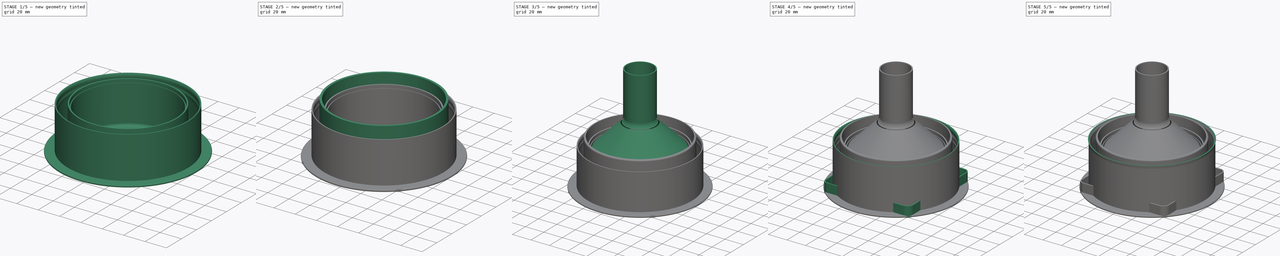
[diagram: build sequence overview — one tinted view per stage of 5, left to right]
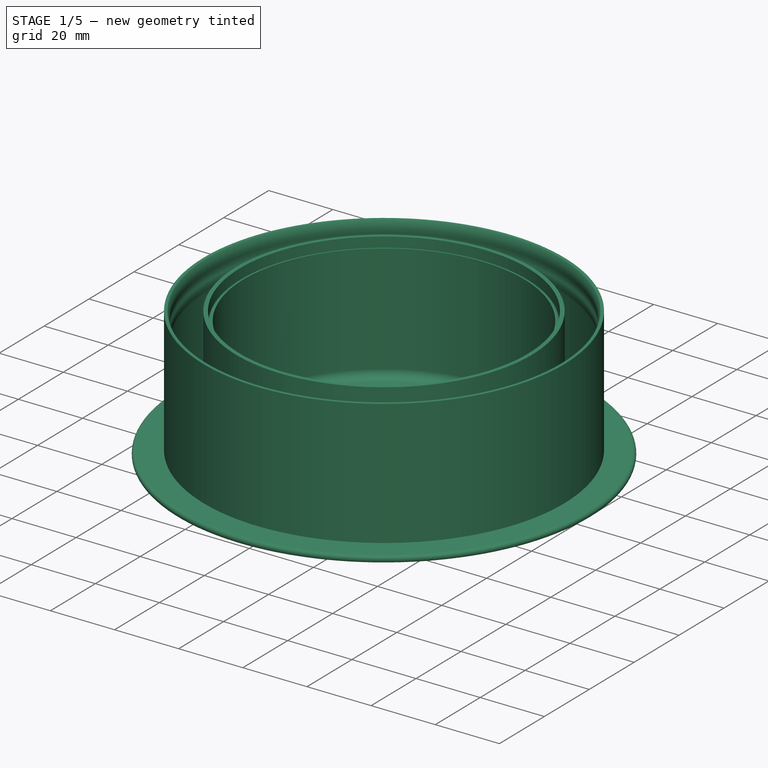
[diagram: stage 1 of 5 — iso view after this stage's code; geometry added in this stage tinted green]
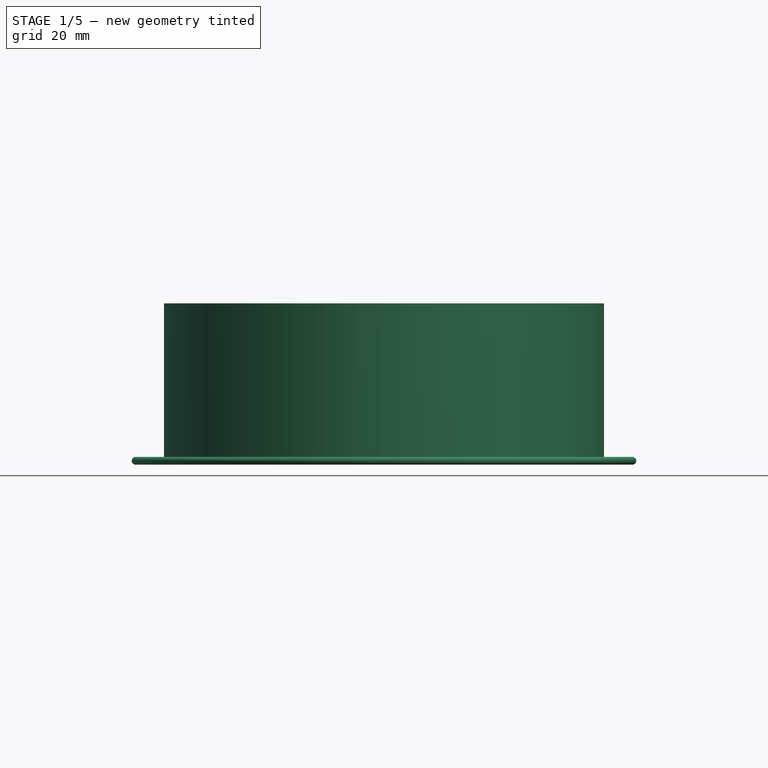
[diagram: stage 1 of 5 — front view after this stage's code; geometry added in this stage tinted green]
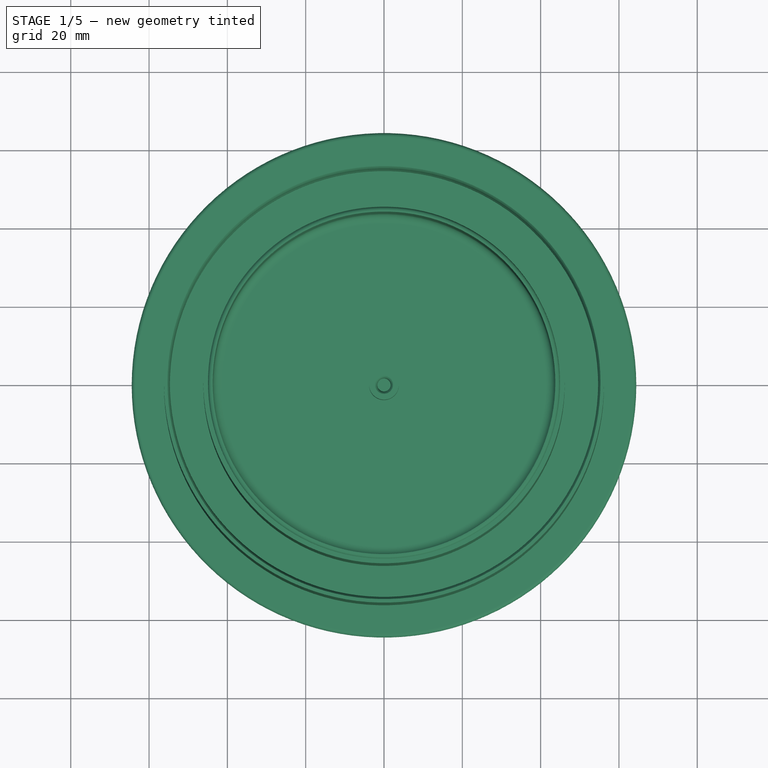
[diagram: stage 1 of 5 — top view after this stage's code; geometry added in this stage tinted green]
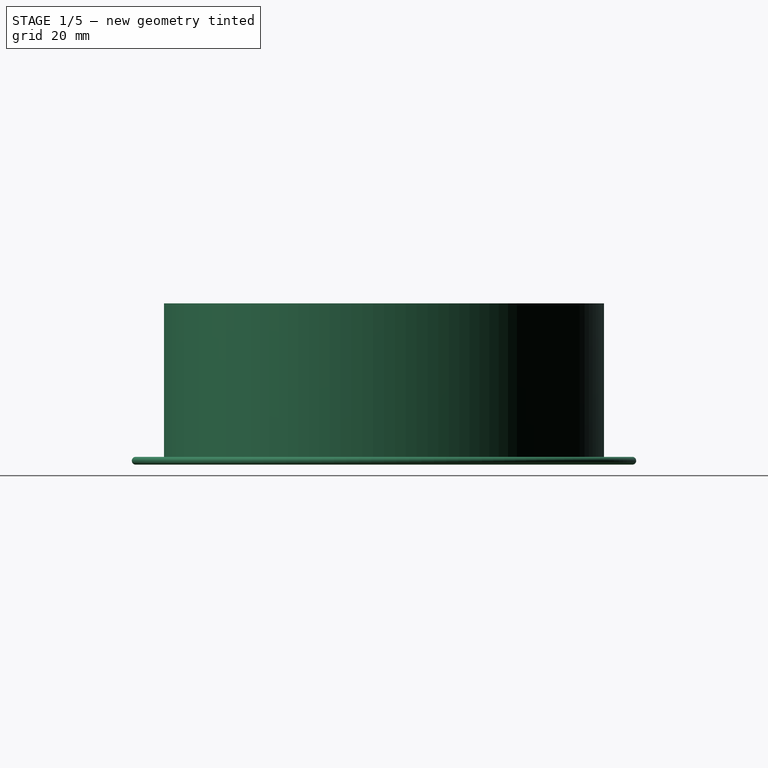
[diagram: stage 1 of 5 — right view after this stage's code; geometry added in this stage tinted green]
FCSTD DOCUMENT  (FreeCAD 1.0R38642 (Git))
Label: VentPipeCap
License: Creative Commons Attribution-NonCommercial-ShareAlike
LicenseURL: http://creativecommons.org/licenses/by-nc-sa/4.0/
objects: Sketcher::SketchObject×32, PartDesign::Fillet×11, PartDesign::Body×10, PartDesign::Pad×10, PartDesign::Chamfer×4, PartDesign::Revolution×3, PartDesign::AdditiveLoft×3, PartDesign::Groove×3, PartDesign::ShapeBinder×3, Spreadsheet::Sheet×1
note: 179 computed .brp shape members not serialized (recipe doc carries the construction recipe); baked Part::Feature solids carry a one-line shape summary decoded from their .brp

FEATURE [PartDesign::Body] Body006  label="Inlet"
  AllowCompound = false
  Group = -> [ShapeBinder001,Sketch023,Sketch024,Pad005,Sketch025,Sketch026,AdditiveLoft002,Sketch027,Pad006,Fillet006,Fillet007]
  Origin = -> Origin006
  Tip = -> Fillet007
FEATURE [Sketcher::SketchObject] Sketch028
  ArcFitTolerance = 0
  AttachmentSupport = -> [XY_Plane008]
  FullyConstrained = true
  MakeInternals = false
  MapMode = 5
  sketch-geometry (1):
    g0: Circle CenterX=0 CenterY=0 CenterZ=0 NormalX=0 NormalY=0 NormalZ=1 AngleXU=0 Radius=3.8
  constraints (2):
    c: Coincident(g0,g-1)
    c: Radius(g0) = 3.8
FEATURE [PartDesign::Pad] Pad007
  Direction = (0,0,1)
  Length = 10
  Length2 = 10
  Profile = -> Sketch028
  ReferenceAxis = -> Sketch028 [N_Axis]
  Suppressed = false
  Type = 0
FEATURE [Sketcher::SketchObject] Sketch029
  ArcFitTolerance = 0
  AttachmentSupport = -> [XZ_Plane008]
  FullyConstrained = true
  MakeInternals = false
  MapMode = 5
  Placement = pos=(0,0,0) rot=(1,0,0;1.5708rad)
  expr: Constraints[10] = <<Spreadsheet>>.Variance
  sketch-geometry (12):
    g0: LineSegment StartX=-2.3 StartY=10 StartZ=0 EndX=0 EndY=10 EndZ=0
    g1: LineSegment StartX=0 StartY=1.6 StartZ=0 EndX=-2.3 EndY=1.6 EndZ=0
    g2: LineSegment [constr] StartX=-1.7 StartY=10 StartZ=0 EndX=-1.7 EndY=1.6 EndZ=0
    g3: ArcOfCircle CenterX=-3.4851 CenterY=8.66504 CenterZ=0 NormalX=0 NormalY=0 NormalZ=1 AngleXU=0 Radius=1.7851 StartAngle=5.87031 EndAngle=7.12798
    g4: LineSegment [constr] StartX=-2.3 StartY=10 StartZ=0 EndX=-2.3 EndY=1.6 EndZ=0
    g5: ArcOfCircle CenterX=-3.4851 CenterY=2.93496 CenterZ=0 NormalX=0 NormalY=0 NormalZ=1 AngleXU=0 Radius=1.7851 StartAngle=5.43839 EndAngle=6.69606
    g6: LineSegment [constr] StartX=-2 StartY=1.6 StartZ=0 EndX=-2 EndY=10 EndZ=0
    g7: LineSegment StartX=0 StartY=1.6 StartZ=0 EndX=0 EndY=10 EndZ=0
    g8: ArcOfCircle CenterX=-0.214904 CenterY=7.23252 CenterZ=0 NormalX=0 NormalY=0 NormalZ=1 AngleXU=0 Radius=1.7851 StartAngle=2.72872 EndAngle=3.55447
    g9: ArcOfCircle CenterX=-3.4851 CenterY=5.8 CenterZ=0 NormalX=0 NormalY=0 NormalZ=1 AngleXU=0 Radius=1.7851 StartAngle=5.87031 EndAngle=6.69606
    g10: ArcOfCircle CenterX=-0.214904 CenterY=4.36748 CenterZ=0 NormalX=0 NormalY=0 NormalZ=1 AngleXU=0 Radius=1.7851 StartAngle=2.72872 EndAngle=3.55447
    g11: LineSegment [constr] StartX=0 StartY=1.6 StartZ=0 EndX=0 EndY=0 EndZ=0
  constraints (36):
    c: Horizontal(g0)
    c: Horizontal(g1)
    c: PointOnObject(g2,g1)
    c: Vertical(g2)
    c: Tangent(g3,g2)
    c: Coincident(g0,g3)
    c: PointOnObject(g2,g0)
    c: Coincident(g4,g0)
    c: Coincident(g4,g1)
    c: Vertical(g4)
    c: DistanceX(g0,g6) = 0.3
    c: Tangent(g5,g2)
    c: Coincident(g5,g1)
    c: Vertical(g6)
    c: Symmetric(g2,g0,g6)
    c: Vertical(g7)
    c: Coincident(g0,g7)
    c: PointOnObject(g6,g1)
    c: DistanceX(g6,g1) = 2
    c: Equal(g3,g8)
    c: Equal(g8,g9)
    c: Equal(g9,g10)
    c: Equal(g10,g5)
    c: Tangent(g3,g8) = 1.5708
    c: Tangent(g8,g9) = 1.5708
    c: Tangent(g9,g10) = 1.5708
    c: Tangent(g5,g10) = 1.5708
    c: Tangent(g8,g6)
    c: Tangent(g9,g2)
    c: Tangent(g10,g6)
    c: Coincident(g1,g7)
    c: Coincident(g11,g1)
    c: Vertical(g11)
    c: DistanceY(g11,g11) = 1.6
    c: Coincident(g11,g-1)
    c: DistanceY(g11,g0) = 10
FEATURE [PartDesign::Groove] Groove002
  Angle = 360
  Angle2 = 60
  Axis = (0,2e-16,1)
  Base = (0,0,0)
  BaseFeature = -> Pad007
  Profile = -> Sketch029
  ReferenceAxis = -> Sketch029 [V_Axis]
  Reversed = true
  Suppressed = false
  Type = 0
FEATURE [PartDesign::Body] Body008  label="DrainPipeCap"
  AllowCompound = false
  Group = -> [Sketch028,Pad007,Sketch029,Groove002,Chamfer003,Fillet008]
  Origin = -> Origin008
  Tip = -> Fillet008
FEATURE [Sketcher::SketchObject] Sketch030
  ArcFitTolerance = 0
  AttachmentSupport = -> [XZ_Plane009]
  FullyConstrained = true
  MakeInternals = false
  MapMode = 5
  Placement = pos=(0,0,0) rot=(1,0,0;1.5708rad)
  expr: Constraints[10] = <<Spreadsheet>>.Variance
  expr: Constraints[113] = <<Spreadsheet>>.WallThickness
  expr: Constraints[115] = <<Spreadsheet>>.Height
  expr: Constraints[52] = <<Spreadsheet>>.CentralPipeRadius
  expr: Constraints[56] = <<Spreadsheet>>.InnerRadius
  expr: Constraints[5] = <<Spreadsheet>>.WallThickness
  sketch-geometry (48):
    g0: LineSegment StartX=-56.2 StartY=0 StartZ=0 EndX=-56.2 EndY=41.2 EndZ=0
    g1: LineSegment [constr] StartX=0 StartY=0 StartZ=0 EndX=0 EndY=1.2 EndZ=0
    g2: LineSegment [constr] StartX=-55 StartY=1.2 StartZ=0 EndX=-56.2 EndY=1.2 EndZ=0
    g3: LineSegment [constr] StartX=-54.7 StartY=41.2 StartZ=0 EndX=-54.7 EndY=1.2 EndZ=0
    g4: ArcOfCircle CenterX=-59.7 CenterY=38.8251 CenterZ=0 NormalX=0 NormalY=0 NormalZ=1 AngleXU=0 Radius=5 StartAngle=6.03762 EndAngle=6.77812
    g5: ArcOfCircle CenterX=-50 CenterY=36.3941 CenterZ=0 NormalX=0 NormalY=0 NormalZ=1 AngleXU=0 Radius=5 StartAngle=2.89603 EndAngle=3.38716
    g6: ArcOfCircle CenterX=-59.7 CenterY=33.963 CenterZ=0 NormalX=0 NormalY=0 NormalZ=1 AngleXU=0 Radius=5 StartAngle=6.03762 EndAngle=6.52875
    g7: ArcOfCircle CenterX=-50 CenterY=31.532 CenterZ=0 NormalX=0 NormalY=0 NormalZ=1 AngleXU=0 Radius=5 StartAngle=2.89603 EndAngle=3.14159
    g8: LineSegment [constr] StartX=-44.95 StartY=0 StartZ=0 EndX=0 EndY=0 EndZ=0
    g9: LineSegment [constr] StartX=-44.95 StartY=1.2 StartZ=0 EndX=-44.95 EndY=0 EndZ=0
    g10: LineSegment [constr] StartX=-55 StartY=31.532 StartZ=0 EndX=-55 EndY=41.2 EndZ=0
    g11: LineSegment [constr] StartX=-55 StartY=1.2 StartZ=0 EndX=-55 EndY=10.9242 EndZ=0
    g12: LineSegment StartX=-55 StartY=10.9242 StartZ=0 EndX=-55 EndY=31.532 EndZ=0
    g13: ArcOfCircle CenterX=-50 CenterY=1.2 CenterZ=0 NormalX=0 NormalY=0 NormalZ=1 AngleXU=0 Radius=5 StartAngle=2.89603 EndAngle=3.14159
    g14: ArcOfCircle CenterX=-59.7 CenterY=3.63105 CenterZ=0 NormalX=0 NormalY=0 NormalZ=1 AngleXU=0 Radius=5 StartAngle=6.03762 EndAngle=6.52875
    g15: LineSegment StartX=-56.2 StartY=41.2 StartZ=0 EndX=-55.3 EndY=41.2 EndZ=0
    g16: LineSegment [constr] StartX=-55.3 StartY=41.2 StartZ=0 EndX=-54.7 EndY=41.2 EndZ=0
    g17: ArcOfCircle CenterX=-50 CenterY=6.0621 CenterZ=0 NormalX=0 NormalY=0 NormalZ=1 AngleXU=0 Radius=5 StartAngle=2.89603 EndAngle=3.38716
    g18: ArcOfCircle CenterX=-59.7 CenterY=8.49315 CenterZ=0 NormalX=0 NormalY=0 NormalZ=1 AngleXU=0 Radius=5 StartAngle=6.03762 EndAngle=6.52875
    g19: ArcOfCircle CenterX=-50 CenterY=10.9242 CenterZ=0 NormalX=0 NormalY=0 NormalZ=1 AngleXU=0 Radius=5 StartAngle=3.14159 EndAngle=3.38716
    g20: LineSegment [constr] StartX=-44.95 StartY=1.2 StartZ=0 EndX=-46.15 EndY=1.2 EndZ=0
    g21: LineSegment StartX=-46.15 StartY=1.2 StartZ=0 EndX=-46.15 EndY=21.2 EndZ=0
    g22: LineSegment [constr] StartX=-46.15 StartY=21.2 StartZ=0 EndX=-54.7 EndY=21.2 EndZ=0
    g23: LineSegment StartX=-56.2 StartY=0 StartZ=0 EndX=-45.25 EndY=0 EndZ=0
    g24: LineSegment [constr] StartX=-45.25 StartY=0 StartZ=0 EndX=-44.95 EndY=0 EndZ=0
    g25: LineSegment [constr] StartX=-44.65 StartY=21.2 StartZ=0 EndX=-44.65 EndY=1.2 EndZ=0
    g26: LineSegment StartX=-46.15 StartY=1.2 StartZ=0 EndX=-54.7 EndY=1.2 EndZ=0
    g27: LineSegment StartX=-54.7 StartY=1.2 StartZ=0 EndX=-55 EndY=1.2 EndZ=0
    g28: LineSegment [constr] StartX=0 StartY=1.2 StartZ=0 EndX=-44.65 EndY=1.2 EndZ=0
    g29: LineSegment [constr] StartX=-44.65 StartY=1.2 StartZ=0 EndX=-44.95 EndY=1.2 EndZ=0
    g30: ArcOfCircle CenterX=-49.65 CenterY=2.95108 CenterZ=0 NormalX=0 NormalY=0 NormalZ=1 AngleXU=0 Radius=5 StartAngle=5.98229 EndAngle=6.52875
    g31: LineSegment [constr] StartX=-44.65 StartY=1.2 StartZ=0 EndX=-44.65 EndY=0 EndZ=0
    g32: ArcOfCircle CenterX=-39.95 CenterY=5.38213 CenterZ=0 NormalX=0 NormalY=0 NormalZ=1 AngleXU=0 Radius=5 StartAngle=2.89603 EndAngle=3.38716
    g33: ArcOfCircle CenterX=-49.65 CenterY=7.81318 CenterZ=0 NormalX=0 NormalY=0 NormalZ=1 AngleXU=0 Radius=5 StartAngle=6.03762 EndAngle=6.52875
    g34: LineSegment [constr] StartX=-44.95 StartY=1.2 StartZ=0 EndX=-44.95 EndY=10.2442 EndZ=0
    g35: ArcOfCircle CenterX=-39.95 CenterY=10.2442 CenterZ=0 NormalX=0 NormalY=0 NormalZ=1 AngleXU=0 Radius=5 StartAngle=3.14159 EndAngle=3.38716
    g36: LineSegment [constr] StartX=-44.95 StartY=21.2 StartZ=0 EndX=-46.15 EndY=21.2 EndZ=0
    g37: LineSegment StartX=-44.95 StartY=10.2442 StartZ=0 EndX=-44.95 EndY=16.3379 EndZ=0
    g38: LineSegment [constr] StartX=-44.95 StartY=16.3379 StartZ=0 EndX=-44.95 EndY=21.2 EndZ=0
    g39: ArcOfCircle CenterX=-39.95 CenterY=16.3379 CenterZ=0 NormalX=0 NormalY=0 NormalZ=1 AngleXU=0 Radius=5 StartAngle=2.89603 EndAngle=3.14159
    g40: ArcOfCircle CenterX=-49.65 CenterY=18.769 CenterZ=0 NormalX=0 NormalY=0 NormalZ=1 AngleXU=0 Radius=5 StartAngle=6.03762 EndAngle=6.52875
    g41: ArcOfCircle CenterX=-39.95 CenterY=21.2 CenterZ=0 NormalX=0 NormalY=0 NormalZ=1 AngleXU=0 Radius=5 StartAngle=3.14159 EndAngle=3.38716
    g42: GeomPoint [constr] X=-50.575 Y=0 Z=0
    g43: LineSegment StartX=-45.25 StartY=0 StartZ=0 EndX=-44.95 EndY=1.2 EndZ=0
    g44: ArcOfCircle CenterX=-40.0993 CenterY=-0.0126781 CenterZ=0 NormalX=0 NormalY=0 NormalZ=1 AngleXU=0 Radius=5 StartAngle=2.8407 EndAngle=2.89661
    g45: LineSegment StartX=-46.15 StartY=21.2 StartZ=0 EndX=-46.15 EndY=41.2 EndZ=0
    g46: LineSegment StartX=-44.95 StartY=21.2 StartZ=0 EndX=-44.95 EndY=41.2 EndZ=0
    g47: LineSegment StartX=-44.95 StartY=41.2 StartZ=0 EndX=-46.15 EndY=41.2 EndZ=0
  constraints (131):
    c: Vertical(g0)
    c: Coincident(g15,g0)
    c: Coincident(g23,g0)
    c: Vertical(g1)
    c: Coincident(g8,g1)
    c: DistanceY(g1,g1) = 1.2
    c: Coincident(g28,g1)
    c: PointOnObject(g2,g0)
    c: Horizontal(g2)
    c: Coincident(g3,g16)
    c: DistanceX(g10,g16) = 0.3
    c: Tangent(g4,g3)
    c: Equal(g5,g4)
    c: Tangent(g4,g5) = 1.5708
    c: Tangent(g5,g6) = 1.5708
    c: Tangent(g6,g7) = 1.5708
    c: Equal(g5,g6)
    c: Equal(g6,g7)
    c: Tangent(g6,g3)
    c: Radius(g4) = 5
    c: Coincident(g29,g20)
    c: Coincident(g24,g8)
    c: Horizontal(g8)
    c: Coincident(g9,g29)
    c: Coincident(g9,g24)
    c: Vertical(g9)
    c: Coincident(g12,g10)
    c: Tangent(g5,g10)
    c: Coincident(g12,g7)
    c: Tangent(g5,g11)
    c: Tangent(g7,g11) = 1.5708
    c: Coincident(g13,g11)
    c: Tangent(g14,g3)
    c: Tangent(g14,g13) = 1.5708
    c: Equal(g14,g13)
    c: Symmetric(g4,g16,g10)
    c: Coincident(g15,g16)
    c: Horizontal(g15)
    c: Horizontal(g16)
    c: Coincident(g15,g4)
    c: Vertical(g3)
    c: Equal(g17,g14)
    c: Tangent(g17,g11)
    c: Coincident(g2,g11)
    c: Coincident(g27,g13)
    c: Tangent(g17,g14) = 1.5708
    c: Equal(g18,g17)
    c: Tangent(g18,g17) = 1.5708
    c: Tangent(g18,g3)
    c: Equal(g18,g19)
    c: Tangent(g19,g18) = 1.5708
    c: Equal(g19,g7)
    c: DistanceX(g8,g8) = 44.95
    c: Vertical(g12)
    c: Tangent(g19,g12) = 1.5708
    c: Coincident(g11,g12)
    c: DistanceX(g27,g1) = 55
    c: Coincident(g20,g26)
    c: Horizontal(g20)
    c: PointOnObject(g13,g20)
    c: PointOnObject(g3,g20)
    c: Equal(g2,g20)
    c: Coincident(g21,g26)
    c: Vertical(g21)
    c: Coincident(g22,g21)
    c: Horizontal(g22)
    c: Horizontal(g23)
    c: Horizontal(g24)
    c: Coincident(g34,g29)
    c: Vertical(g25)
    c: Coincident(g26,g27)
    c: Horizontal(g27)
    c: Coincident(g3,g26)
    c: Coincident(g28,g29)
    c: Horizontal(g28)
    c: Horizontal(g29)
    c: Coincident(g25,g28)
    c: Equal(g29,g27)
    c: Tangent(g30,g25)
    c: Equal(g30,g13)
    c: Coincident(g31,g25)
    c: Vertical(g31)
    c: Symmetric(g31,g23,g24)
    c: Tangent(g32,g30) = 1.5708
    c: Equal(g32,g30)
    c: Equal(g32,g33)
    c: Tangent(g32,g33) = 1.5708
    c: Tangent(g33,g25)
    c: Coincident(g34,g37)
    c: Vertical(g34)
    c: Tangent(g32,g34)
    c: Tangent(g35,g33) = 1.5708
    c: Equal(g33,g35)
    c: PointOnObject(g25,g22)
    c: Coincident(g36,g38)
    c: Coincident(g36,g21)
    c: Horizontal(g36)
    c: Coincident(g37,g38)
    c: Vertical(g37)
    c: Vertical(g38)
    c: Tangent(g37,g39) = 1.5708
    c: Equal(g35,g39)
    c: Equal(g39,g40)
    c: Tangent(g40,g39) = 1.5708
    c: Tangent(g40,g25)
    c: Coincident(g41,g36)
    c: PointOnObject(g41,g36)
    c: Tangent(g41,g40) = 1.5708
    c: Equal(g40,g41)
    c: Tangent(g35,g37) = 1.5708
    c: Symmetric(g8,g0,g42)
    c: DistanceX(g42,g1) = 50.575  'DrainOffset'
    c: Coincident(g-1,g1)  '__ANCHOR__'
    c: DistanceX(g0,g10) = 1.2
    c: DistanceY(g31,g25) = 21.2  'ExhaustHeight'
    c: DistanceY(g2,g0) = 40
    c: Coincident(g43,g23)
    c: Tangent(g30,g44) = 1.5708
    c: Equal(g44,g30)
    c: Tangent(g44,g43) = 1.5708
    c: Coincident(g43,g9)
    c: Coincident(g24,g23)
    c: Coincident(g45,g21)
    c: Vertical(g45)
    c: Coincident(g46,g36)
    c: Vertical(g46)
    c: Coincident(g47,g46)
    c: Coincident(g47,g45)
    c: Horizontal(g47)
    c: PointOnObject(g3,g47)
    c: Symmetric(g3,g3,g22)
FEATURE [PartDesign::Revolution] Revolution003
  Angle = 360
  Angle2 = 60
  Axis = (0,2e-16,1)
  Base = (0,0,0)
  Placement = pos=(0,0,0) rot=(1,0,0;1.5708rad)
  Profile = -> Sketch030
  ReferenceAxis = -> Sketch030 [V_Axis]
  Suppressed = false
  Type = 0
FEATURE [PartDesign::Body] Body009  label="DrainlessHoleyCap"
  AllowCompound = false
  Group = -> [Sketch030,Revolution003]
  Origin = -> Origin009
  Tip = -> Revolution003
FEATURE [PartDesign::ShapeBinder] ShapeBinder002
  Support = -> [Sketch012]
  TraceSupport = false
FEATURE [Sketcher::SketchObject] Sketch031  label="ExhTemplate001"
  ArcFitTolerance = 0
  AttachmentSupport = -> [XY_Plane010]
  ExternalGeometry = -> [ShapeBinder002]
  FullyConstrained = true
  MakeInternals = false
  MapMode = 5
  expr: Constraints[1] = <<Spreadsheet>>.CentralPipeRadius
  expr: Constraints[3] = <<Spreadsheet>>.CentralPipeRadius - Spreadsheet.WallThickness
  sketch-geometry (3):
    g0: Circle CenterX=0 CenterY=0 CenterZ=0 NormalX=0 NormalY=0 NormalZ=1 AngleXU=0 Radius=44.95
    g1: Circle CenterX=0 CenterY=0 CenterZ=0 NormalX=0 NormalY=0 NormalZ=1 AngleXU=0 Radius=43.75
    g2: Circle CenterX=0 CenterY=0 CenterZ=0 NormalX=0 NormalY=0 NormalZ=1 AngleXU=0 Radius=64.4328
  constraints (6):
    c: Coincident(g0,g-3)
    c: Radius(g0) = 44.95
    c: Coincident(g0,g1)
    c: Radius(g1) = 43.75
    c: Coincident(g0,g2)
    c: Tangent(g2,g-4)
FEATURE [Sketcher::SketchObject] Sketch032  label="exh_base001"
  ArcFitTolerance = 0
  AttachmentSupport = -> [XY_Plane010]
  ExternalGeometry = -> [Sketch031]
  FullyConstrained = true
  MakeInternals = false
  MapMode = 5
  sketch-geometry (1):
    g0: Circle CenterX=0 CenterY=-2e-16 CenterZ=0 NormalX=0 NormalY=0 NormalZ=1 AngleXU=0 Radius=64.4328
  constraints (2):
    c: Coincident(g0,g-3)
    c: Equal(g-3,g0)
FEATURE [PartDesign::Pad] Pad008  label="exh_base_001"
  Direction = (0,0,1)
  Length = 2
  Length2 = 10
  Profile = -> Sketch032
  ReferenceAxis = -> Sketch032 [N_Axis]
  Suppressed = false
  Type = 0
  expr: Length = <<Spreadsheet>>.FanBaseThickness
FEATURE [Sketcher::SketchObject] Sketch033  label="exh_pipe001"
  ArcFitTolerance = 0
  AttachmentOffset = pos=(0,0,2) rot=(0,0,1;0rad)
  AttachmentSupport = -> [XY_Plane010]
  ExternalGeometry = -> [Sketch031]
  FullyConstrained = true
  MakeInternals = false
  MapMode = 5
  Placement = pos=(0,0,2) rot=(0,0,1;0rad)
  expr: .AttachmentOffset.Base.z = <<exh_base001>>.AttachmentOffset.Base.z + <<exh_base_001>>.Length
  sketch-geometry (2):
    g0: Circle CenterX=0 CenterY=0 CenterZ=0 NormalX=0 NormalY=0 NormalZ=1 AngleXU=0 Radius=43.75
    g1: Circle CenterX=0 CenterY=0 CenterZ=0 NormalX=0 NormalY=0 NormalZ=1 AngleXU=0 Radius=44.95
  constraints (4):
    c: Coincident(g1,g0)
    c: Coincident(g0,g-3)
    c: Equal(g-3,g1)
    c: Equal(g-4,g0)
FEATURE [PartDesign::Pad] Pad009  label="exh_pipe_001"
  BaseFeature = -> Pad008
  Direction = (0,0,1)
  Length = 36.4
  Length2 = 10
  Profile = -> Sketch033
  ReferenceAxis = -> Sketch033 [N_Axis]
  Refine = true
  Suppressed = false
  Type = 0
  expr: Length = <<Sketch>>.Constraints.ExhaustHeight + 10 mm
FEATURE [PartDesign::Fillet] Fillet009
  Base = -> Pad009 [Edge6,Edge3,Edge2]
  BaseFeature = -> Pad009
  Radius = 0.99
  SupportTransform = false
  Suppressed = false
  UseAllEdges = false
FEATURE [PartDesign::Fillet] Fillet010
  Base = -> Fillet009 [Edge15]
  BaseFeature = -> Fillet009
  Radius = 2.5
  SupportTransform = false
  Suppressed = false
  UseAllEdges = false
FEATURE [PartDesign::Body] Body010  label="ExhaustPlug"
  AllowCompound = false
  Group = -> [ShapeBinder002,Sketch031,Sketch032,Pad008,Sketch033,Pad009,Fillet009,Fillet010]
  Origin = -> Origin010
  Tip = -> Fillet010
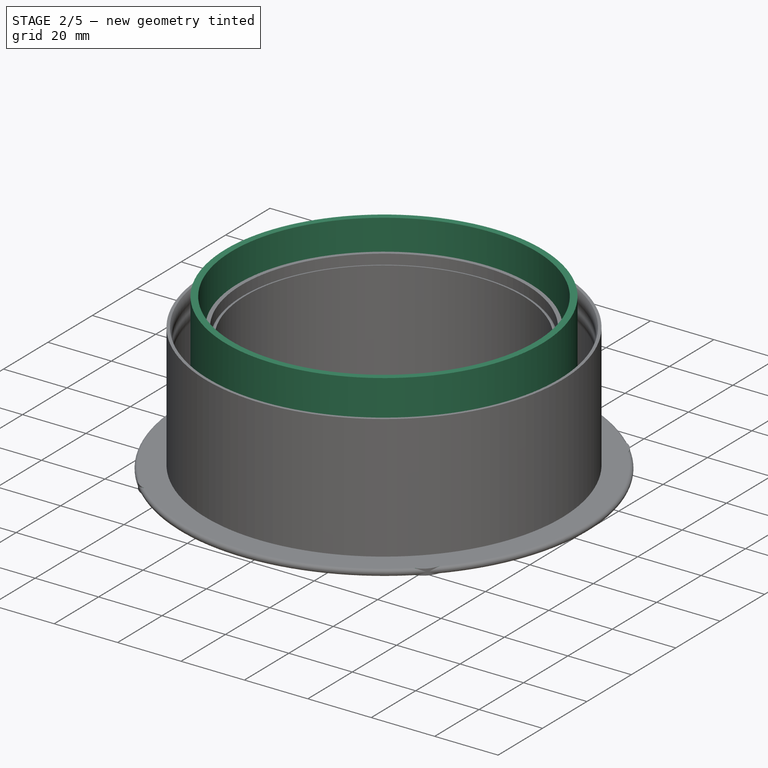
[diagram: stage 2 of 5 — iso view after this stage's code; geometry added in this stage tinted green]
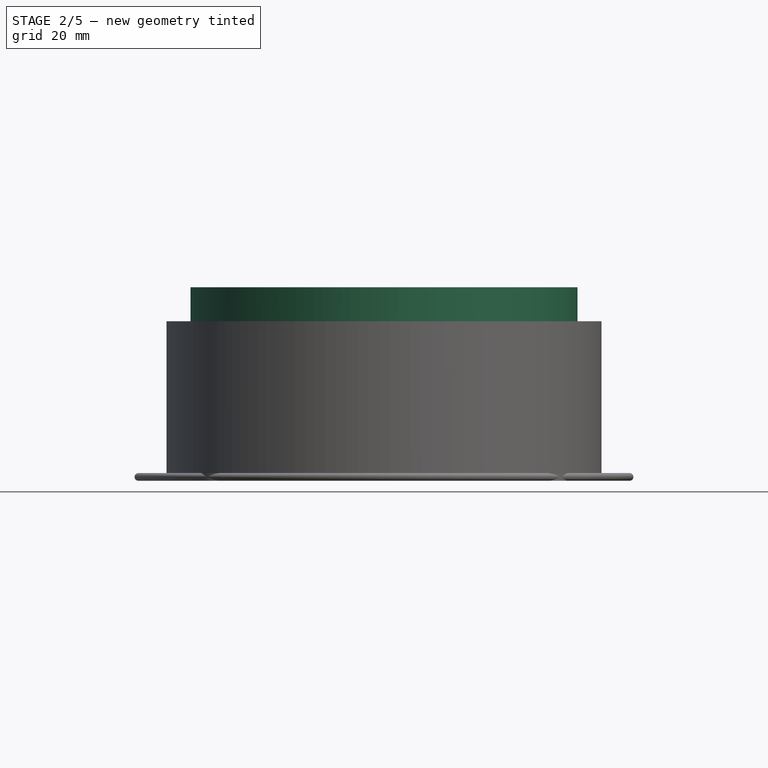
[diagram: stage 2 of 5 — front view after this stage's code; geometry added in this stage tinted green]
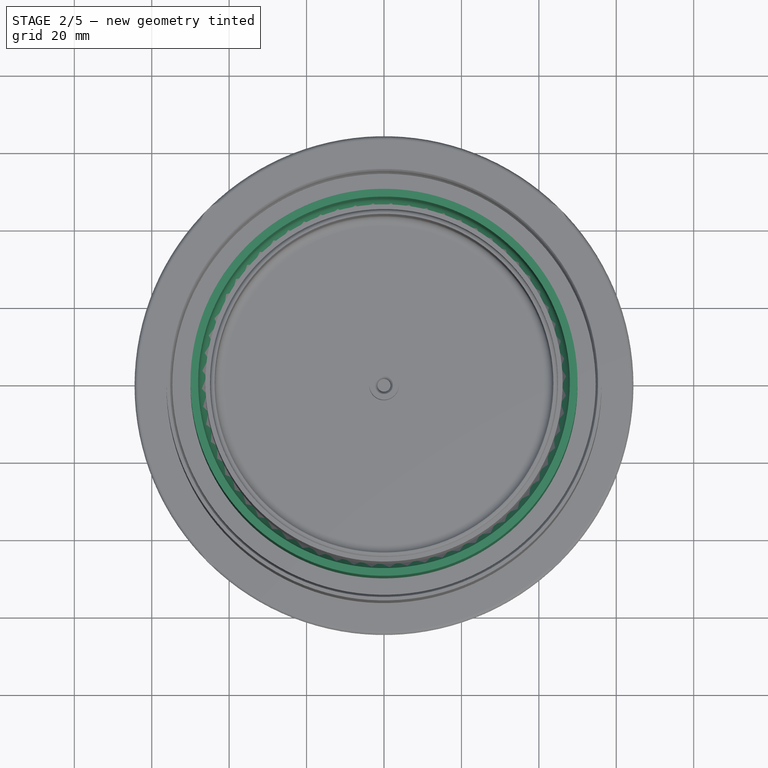
[diagram: stage 2 of 5 — top view after this stage's code; geometry added in this stage tinted green]
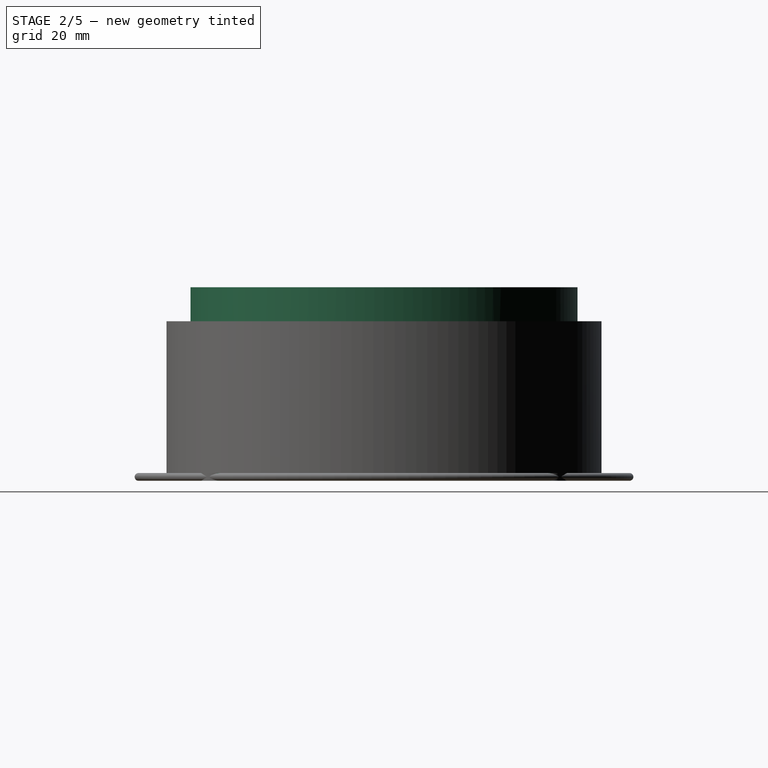
[diagram: stage 2 of 5 — right view after this stage's code; geometry added in this stage tinted green]
FEATURE [PartDesign::Body] Body005  label="Exhaust"
  AllowCompound = false
  Group = -> [ShapeBinder,Sketch015,Sketch016,Pad003,Sketch017,Pad004,Fillet002,Fillet005,Chamfer]
  Origin = -> Origin005
  Tip = -> Chamfer
FEATURE [PartDesign::ShapeBinder] ShapeBinder001  label="InlExhTemplate"
  Support = -> [Sketch015]
  TraceSupport = false
FEATURE [Sketcher::SketchObject] Sketch023  label="InlTubeTemplate"
  ArcFitTolerance = 0
  AttachmentSupport = -> [XY_Plane006]
  ExternalGeometry = -> [ShapeBinder001]
  FullyConstrained = true
  MakeInternals = false
  MapMode = 5
  expr: Constraints[1] = <<Spreadsheet>>.InletTubeOuterRadius
  expr: Constraints[5] = <<Spreadsheet>>.InletTubeThickness
  sketch-geometry (5):
    g0: Circle CenterX=0 CenterY=0 CenterZ=0 NormalX=0 NormalY=0 NormalZ=1 AngleXU=0 Radius=48
    g1: Circle CenterX=0 CenterY=0 CenterZ=0 NormalX=0 NormalY=0 NormalZ=1 AngleXU=0 Radius=50
    g2: LineSegment [constr] StartX=48 StartY=0 StartZ=0 EndX=50 EndY=0 EndZ=0
    g3: Circle CenterX=0 CenterY=0 CenterZ=0 NormalX=0 NormalY=0 NormalZ=1 AngleXU=0 Radius=45.75
    g4: LineSegment [constr] StartX=43.75 StartY=0 StartZ=0 EndX=45.75 EndY=0 EndZ=0
  constraints (14):
    c: Coincident(g1,g0)
    c: Radius(g1) = 50
    c: PointOnObject(g2,g0)
    c: PointOnObject(g2,g1)
    c: Horizontal(g2)
    c: DistanceX(g2,g2) = 2
    c: Coincident(g3,g-3)
    c: PointOnObject(g4,g-3)
    c: PointOnObject(g4,g3)
    c: Horizontal(g4)
    c: PointOnObject(g-3,g4)
    c: Equal(g4,g2)
    c: Coincident(g1,g-3)
    c: PointOnObject(g-3,g2)
FEATURE [Sketcher::SketchObject] Sketch024  label="InlBase"
  ArcFitTolerance = 0
  AttachmentSupport = -> [XY_Plane006]
  ExternalGeometry = -> [ShapeBinder001]
  FullyConstrained = true
  MakeInternals = false
  MapMode = 5
  sketch-geometry (13):
    g0: ArcOfCircle CenterX=-41 CenterY=41 CenterZ=0 NormalX=0 NormalY=0 NormalZ=1 AngleXU=0 Radius=6.45 StartAngle=1.5708 EndAngle=3.14159
    g1: ArcOfCircle CenterX=41 CenterY=41 CenterZ=0 NormalX=0 NormalY=0 NormalZ=1 AngleXU=0 Radius=6.45 StartAngle=1.54499e-11 EndAngle=1.5708
    g2: ArcOfCircle CenterX=41 CenterY=-41 CenterZ=0 NormalX=0 NormalY=0 NormalZ=1 AngleXU=0 Radius=6.45 StartAngle=4.71239 EndAngle=6.28319
    g3: ArcOfCircle CenterX=-41 CenterY=-41 CenterZ=0 NormalX=0 NormalY=0 NormalZ=1 AngleXU=0 Radius=6.45 StartAngle=3.14159 EndAngle=4.71239
    g4: LineSegment StartX=47.45 StartY=-41 StartZ=0 EndX=47.45 EndY=41 EndZ=0
    g5: LineSegment StartX=41 StartY=47.45 StartZ=0 EndX=-41 EndY=47.45 EndZ=0
    g6: LineSegment StartX=-47.45 StartY=41 StartZ=0 EndX=-47.45 EndY=-41 EndZ=0
    g7: LineSegment StartX=-41 StartY=-47.45 StartZ=0 EndX=41 EndY=-47.45 EndZ=0
    g8: Circle CenterX=-41 CenterY=41 CenterZ=0 NormalX=0 NormalY=0 NormalZ=1 AngleXU=0 Radius=2.4
    g9: Circle CenterX=41 CenterY=41 CenterZ=0 NormalX=0 NormalY=0 NormalZ=1 AngleXU=0 Radius=2.4
    g10: Circle CenterX=41 CenterY=-41 CenterZ=0 NormalX=0 NormalY=0 NormalZ=1 AngleXU=0 Radius=2.4
    g11: Circle CenterX=-41 CenterY=-41 CenterZ=0 NormalX=0 NormalY=0 NormalZ=1 AngleXU=0 Radius=2.4
    g12: Circle CenterX=0 CenterY=0 CenterZ=0 NormalX=0 NormalY=0 NormalZ=1 AngleXU=0 Radius=43.75
  constraints (30):
    c: Coincident(g0,g-9)
    c: Coincident(g0,g-9)
    c: Coincident(g1,g-3)
    c: Coincident(g1,g-3)
    c: Coincident(g2,g-5)
    c: Coincident(g2,g-5)
    c: Coincident(g3,g-7)
    c: Coincident(g3,g-7)
    c: Equal(g-7,g3)
    c: Equal(g-9,g0)
    c: Equal(g-3,g1)
    c: Equal(g-5,g2)
    c: Coincident(g4,g2)
    c: Coincident(g4,g1)
    c: Coincident(g5,g1)
    c: Coincident(g5,g0)
    c: Coincident(g6,g0)
    c: Coincident(g6,g3)
    c: Coincident(g7,g3)
    c: Coincident(g7,g2)
    c: Coincident(g8,g0)
    c: Coincident(g9,g1)
    c: Coincident(g10,g2)
    c: Coincident(g11,g3)
    c: Equal(g-10,g8)
    c: Equal(g-4,g9)
    c: Equal(g-6,g10)
    c: Equal(g-8,g11)
    c: Coincident(g12,g-11)
    c: Equal(g-11,g12)
FEATURE [PartDesign::Pad] Pad005  label="InlBase_"
  Direction = (0,0,1)
  Length = 2
  Length2 = 10
  Profile = -> Sketch024
  ReferenceAxis = -> Sketch024 [N_Axis]
  Suppressed = false
  Type = 0
  expr: Length = <<Spreadsheet>>.FanBaseThickness
FEATURE [Sketcher::SketchObject] Sketch025  label="InlTransA"
  ArcFitTolerance = 0
  AttachmentOffset = pos=(0,0,2) rot=(0,0,1;0rad)
  AttachmentSupport = -> [XY_Plane006]
  ExternalGeometry = -> [ShapeBinder001,Sketch023]
  FullyConstrained = true
  MakeInternals = false
  MapMode = 5
  Placement = pos=(0,0,2) rot=(0,0,1;0rad)
  expr: .AttachmentOffset.Base.z = <<InlBase>>.AttachmentOffset.Base.z + <<InlBase_>>.Length
  sketch-geometry (2):
    g0: Circle CenterX=0 CenterY=0 CenterZ=0 NormalX=0 NormalY=0 NormalZ=1 AngleXU=0 Radius=43.75
    g1: Circle CenterX=0 CenterY=0 CenterZ=0 NormalX=0 NormalY=0 NormalZ=1 AngleXU=0 Radius=45.75
  constraints (4):
    c: Coincident(g1,g0)
    c: Coincident(g-3,g0)
    c: Equal(g-4,g1)
    c: Equal(g-3,g0)
FEATURE [Sketcher::SketchObject] Sketch026  label="InlTransB"
  ArcFitTolerance = 0
  AttachmentOffset = pos=(0,0,10) rot=(0,0,1;0rad)
  AttachmentSupport = -> [XY_Plane006]
  ExternalGeometry = -> [Sketch023]
  FullyConstrained = true
  MakeInternals = false
  MapMode = 5
  Placement = pos=(0,0,10) rot=(0,0,1;0rad)
  expr: .AttachmentOffset.Base.z = <<InlTransA>>.AttachmentOffset.Base.z + 8 mm
  sketch-geometry (2):
    g0: Circle CenterX=0 CenterY=0 CenterZ=0 NormalX=0 NormalY=0 NormalZ=1 AngleXU=0 Radius=48
    g1: Circle CenterX=0 CenterY=0 CenterZ=0 NormalX=0 NormalY=0 NormalZ=1 AngleXU=0 Radius=50
  constraints (4):
    c: Coincident(g1,g0)
    c: Coincident(g-3,g0)
    c: Equal(g-3,g1)
    c: Equal(g-4,g0)
FEATURE [PartDesign::AdditiveLoft] AdditiveLoft002
  BaseFeature = -> Pad005
  Closed = false
  Profile = -> Sketch025
  Ruled = false
  Sections = -> [Sketch026]
  Suppressed = false
FEATURE [Sketcher::SketchObject] Sketch027  label="InlTube"
  ArcFitTolerance = 0
  AttachmentOffset = pos=(0,0,10) rot=(0,0,1;0rad)
  AttachmentSupport = -> [XY_Plane006]
  ExternalGeometry = -> [Sketch023]
  FullyConstrained = true
  MakeInternals = false
  MapMode = 5
  Placement = pos=(0,0,10) rot=(0,0,1;0rad)
  expr: .AttachmentOffset.Base.z = <<InlTransB>>.AttachmentOffset.Base.z
  sketch-geometry (2):
    g0: Circle CenterX=0 CenterY=0 CenterZ=0 NormalX=0 NormalY=0 NormalZ=1 AngleXU=0 Radius=48
    g1: Circle CenterX=0 CenterY=0 CenterZ=0 NormalX=0 NormalY=0 NormalZ=1 AngleXU=0 Radius=50
  constraints (4):
    c: Coincident(g1,g0)
    c: Coincident(g-3,g0)
    c: Equal(g-3,g1)
    c: Equal(g-4,g0)
FEATURE [PartDesign::Pad] Pad006  label="InlTube_"
  BaseFeature = -> AdditiveLoft002
  Direction = (0,0,1)
  Length = 40
  Length2 = 10
  Profile = -> Sketch027
  ReferenceAxis = -> Sketch027 [N_Axis]
  Suppressed = false
  Type = 0
  expr: Length = <<Spreadsheet>>.InletTubeLength
FEATURE [PartDesign::Fillet] Fillet006
  Base = -> Pad006 [Edge42,Edge44,Edge36]
  BaseFeature = -> Pad006
  Radius = 8
  SupportTransform = false
  Suppressed = false
  UseAllEdges = false
FEATURE [PartDesign::Chamfer] Chamfer003
  Angle = 45
  Base = -> Groove002 [Edge2]
  BaseFeature = -> Groove002
  ChamferType = 0
  FlipDirection = false
  Size = 1
  Size2 = 1
  SupportTransform = false
  Suppressed = false
  UseAllEdges = false
FEATURE [PartDesign::Fillet] Fillet008
  Base = -> Chamfer003 [Edge2]
  BaseFeature = -> Chamfer003
  Radius = 1
  SupportTransform = false
  Suppressed = false
  UseAllEdges = false
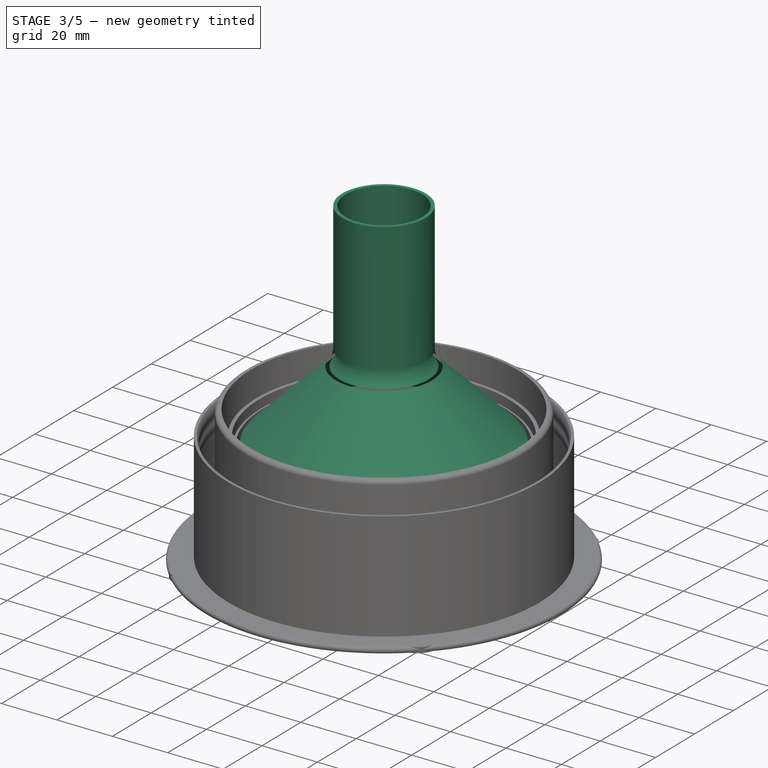
[diagram: stage 3 of 5 — iso view after this stage's code; geometry added in this stage tinted green]
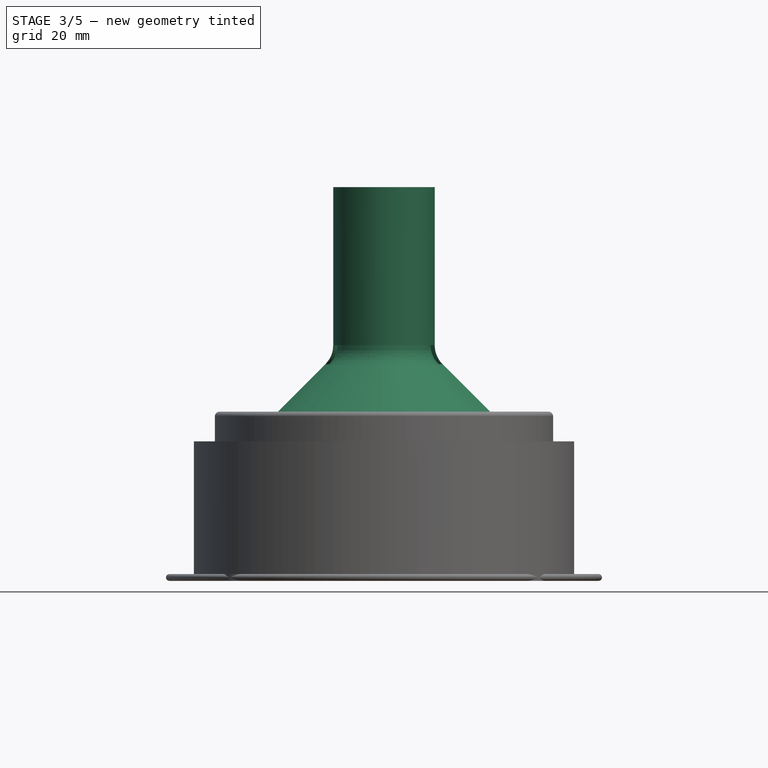
[diagram: stage 3 of 5 — front view after this stage's code; geometry added in this stage tinted green]
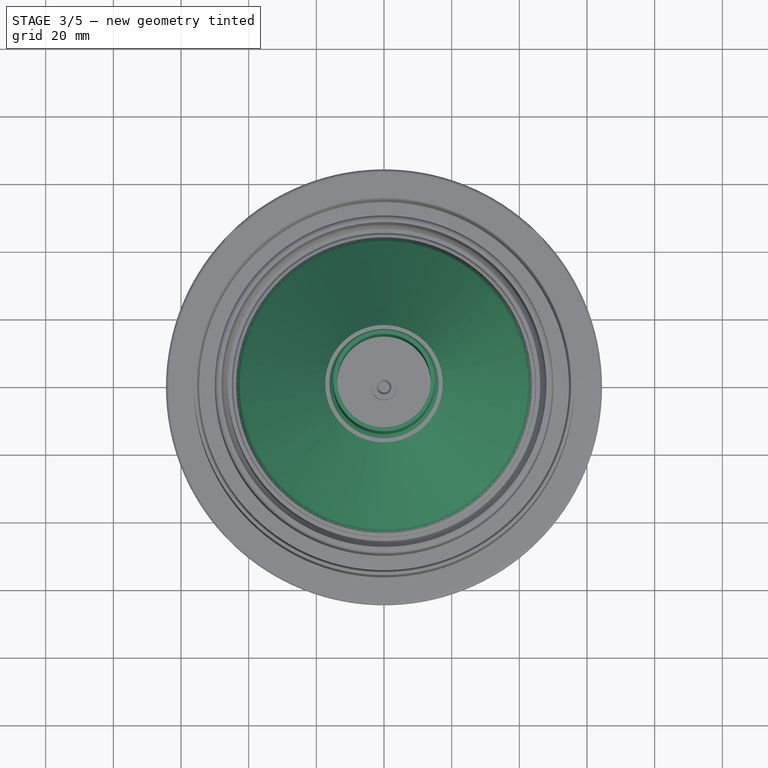
[diagram: stage 3 of 5 — top view after this stage's code; geometry added in this stage tinted green]
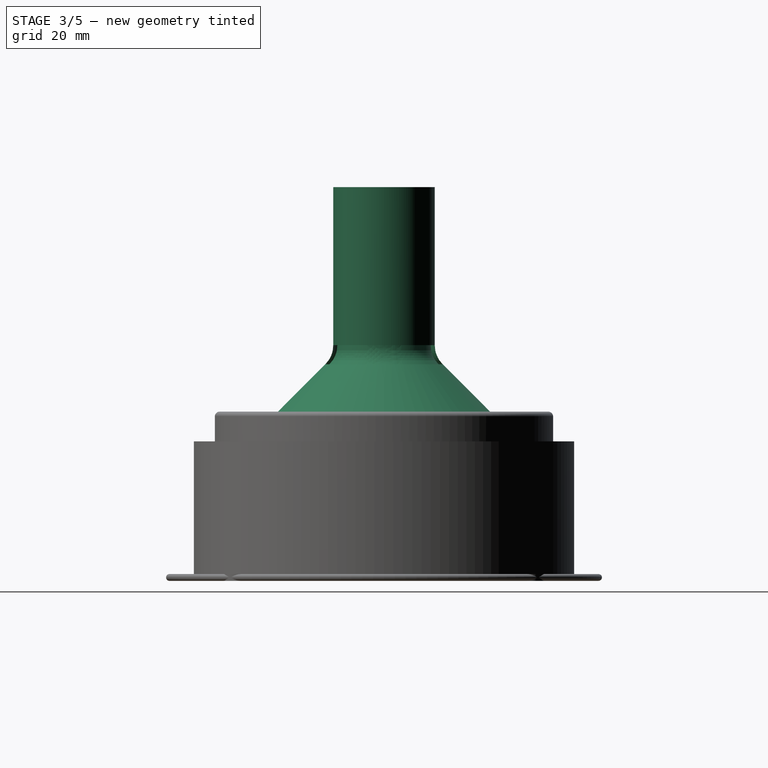
[diagram: stage 3 of 5 — right view after this stage's code; geometry added in this stage tinted green]
FEATURE [PartDesign::Body] Body004  label="Seal"
  AllowCompound = false
  Group = -> [Sketch012,Sketch013,Pad001,Sketch014,Pad002]
  Origin = -> Origin004
  Tip = -> Pad002
FEATURE [PartDesign::ShapeBinder] ShapeBinder
  Support = -> [Sketch012]
  TraceSupport = false
FEATURE [Sketcher::SketchObject] Sketch015  label="ExhTemplate"
  ArcFitTolerance = 0
  AttachmentSupport = -> [XY_Plane005]
  ExternalGeometry = -> [ShapeBinder]
  FullyConstrained = true
  MakeInternals = false
  MapMode = 5
  expr: Constraints[1] = <<Spreadsheet>>.CentralPipeRadius
  expr: Constraints[3] = <<Spreadsheet>>.CentralPipeRadius - Spreadsheet.WallThickness
  sketch-geometry (14):
    g0: Circle CenterX=0 CenterY=0 CenterZ=0 NormalX=0 NormalY=0 NormalZ=1 AngleXU=0 Radius=44.95
    g1: Circle CenterX=0 CenterY=0 CenterZ=0 NormalX=0 NormalY=0 NormalZ=1 AngleXU=0 Radius=43.75
    g2: Circle CenterX=-41 CenterY=41 CenterZ=0 NormalX=0 NormalY=0 NormalZ=1 AngleXU=0 Radius=2.4
    g3: Circle CenterX=41 CenterY=41 CenterZ=0 NormalX=0 NormalY=0 NormalZ=1 AngleXU=0 Radius=2.4
    g4: Circle CenterX=41 CenterY=-41 CenterZ=0 NormalX=0 NormalY=0 NormalZ=1 AngleXU=0 Radius=2.4
    g5: Circle CenterX=-41 CenterY=-41 CenterZ=0 NormalX=0 NormalY=0 NormalZ=1 AngleXU=0 Radius=2.4
    g6: ArcOfCircle CenterX=-41 CenterY=41 CenterZ=0 NormalX=0 NormalY=0 NormalZ=1 AngleXU=0 Radius=6.45 StartAngle=1.5708 EndAngle=3.14159
    g7: ArcOfCircle CenterX=41 CenterY=41 CenterZ=0 NormalX=0 NormalY=0 NormalZ=1 AngleXU=0 Radius=6.45 StartAngle=6e-16 EndAngle=1.5708
    g8: ArcOfCircle CenterX=41 CenterY=-41 CenterZ=0 NormalX=0 NormalY=0 NormalZ=1 AngleXU=0 Radius=6.45 StartAngle=4.71239 EndAngle=6.28319
    g9: ArcOfCircle CenterX=-41 CenterY=-41 CenterZ=0 NormalX=0 NormalY=0 NormalZ=1 AngleXU=0 Radius=6.45 StartAngle=3.14159 EndAngle=4.71239
    g10: LineSegment StartX=-41 StartY=47.45 StartZ=0 EndX=41 EndY=47.45 EndZ=0
    g11: LineSegment StartX=47.45 StartY=41 StartZ=0 EndX=47.45 EndY=-41 EndZ=0
    g12: LineSegment StartX=41 StartY=-47.45 StartZ=0 EndX=-41 EndY=-47.45 EndZ=0
    g13: LineSegment StartX=-47.45 StartY=-41 StartZ=0 EndX=-47.45 EndY=41 EndZ=0
  constraints (32):
    c: Coincident(g0,g-3)
    c: Radius(g0) = 44.95
    c: Coincident(g0,g1)
    c: Radius(g1) = 43.75
    c: Coincident(g2,g-5)
    c: Coincident(g3,g-7)
    c: Coincident(g4,g-9)
    c: Coincident(g5,g-11)
    c: Equal(g-11,g5)
    c: Equal(g-5,g2)
    c: Equal(g-7,g3)
    c: Equal(g-9,g4)
    c: Coincident(g6,g-4)
    c: Coincident(g6,g-4)
    c: Coincident(g7,g-6)
    c: Coincident(g7,g-6)
    c: Coincident(g8,g-8)
    c: Coincident(g8,g-8)
    c: Coincident(g9,g-10)
    c: Coincident(g9,g-10)
    c: Equal(g-10,g9)
    c: Equal(g-4,g6)
    c: Equal(g-6,g7)
    c: Equal(g-8,g8)
    c: Coincident(g10,g6)
    c: Coincident(g10,g7)
    c: Coincident(g11,g7)
    c: Coincident(g11,g8)
    c: Coincident(g12,g8)
    c: Coincident(g12,g9)
    c: Coincident(g13,g9)
    c: Coincident(g13,g6)
FEATURE [Sketcher::SketchObject] Sketch016  label="exh_base"
  ArcFitTolerance = 0
  AttachmentSupport = -> [XY_Plane005]
  ExternalGeometry = -> [Sketch015]
  FullyConstrained = true
  MakeInternals = false
  MapMode = 5
  sketch-geometry (13):
    g0: Circle CenterX=0 CenterY=0 CenterZ=0 NormalX=0 NormalY=0 NormalZ=1 AngleXU=0 Radius=43.75
    g1: Circle CenterX=41 CenterY=41 CenterZ=0 NormalX=0 NormalY=0 NormalZ=1 AngleXU=0 Radius=2.4
    g2: Circle CenterX=41 CenterY=-41 CenterZ=0 NormalX=0 NormalY=0 NormalZ=1 AngleXU=0 Radius=2.4
    g3: Circle CenterX=-41 CenterY=-41 CenterZ=0 NormalX=0 NormalY=0 NormalZ=1 AngleXU=0 Radius=2.4
    g4: Circle CenterX=-41 CenterY=41 CenterZ=0 NormalX=0 NormalY=0 NormalZ=1 AngleXU=0 Radius=2.4
    g5: ArcOfCircle CenterX=-41 CenterY=41 CenterZ=0 NormalX=0 NormalY=0 NormalZ=1 AngleXU=0 Radius=6.45 StartAngle=1.5708 EndAngle=3.14159
    g6: ArcOfCircle CenterX=41 CenterY=41 CenterZ=0 NormalX=0 NormalY=0 NormalZ=1 AngleXU=0 Radius=6.45 StartAngle=1.4e-15 EndAngle=1.5708
    g7: ArcOfCircle CenterX=41 CenterY=-41 CenterZ=0 NormalX=0 NormalY=0 NormalZ=1 AngleXU=0 Radius=6.45 StartAngle=4.71239 EndAngle=6.28319
    g8: ArcOfCircle CenterX=-41 CenterY=-41 CenterZ=0 NormalX=0 NormalY=0 NormalZ=1 AngleXU=0 Radius=6.45 StartAngle=3.14159 EndAngle=4.71239
    g9: LineSegment StartX=-41 StartY=47.45 StartZ=0 EndX=41 EndY=47.45 EndZ=0
    g10: LineSegment StartX=47.45 StartY=41 StartZ=0 EndX=47.45 EndY=-41 EndZ=0
    g11: LineSegment StartX=41 StartY=-47.45 StartZ=0 EndX=-41 EndY=-47.45 EndZ=0
    g12: LineSegment StartX=-47.45 StartY=-41 StartZ=0 EndX=-47.45 EndY=41 EndZ=0
  constraints (30):
    c: Coincident(g1,g-6)
    c: Coincident(g2,g-8)
    c: Coincident(g3,g-10)
    c: Coincident(g4,g-4)
    c: Equal(g-4,g4)
    c: Equal(g-6,g1)
    c: Equal(g-8,g2)
    c: Equal(g-10,g3)
    c: Coincident(g-11,g0)
    c: Equal(g-11,g0)
    c: Coincident(g5,g-3)
    c: Coincident(g5,g-3)
    c: Coincident(g6,g-5)
    c: Coincident(g6,g-5)
    c: Coincident(g7,g-7)
    c: Coincident(g7,g-7)
    c: Coincident(g8,g-9)
    c: Coincident(g8,g-9)
    c: Equal(g-3,g5)
    c: Equal(g-5,g6)
    c: Equal(g-7,g7)
    c: Equal(g-9,g8)
    c: Coincident(g9,g5)
    c: Coincident(g9,g6)
    c: Coincident(g10,g6)
    c: Coincident(g10,g7)
    c: Coincident(g11,g7)
    c: Coincident(g11,g8)
    c: Coincident(g12,g8)
    c: Coincident(g12,g5)
FEATURE [PartDesign::Pad] Pad003  label="exh_base_"
  Direction = (0,0,1)
  Length = 2
  Length2 = 10
  Profile = -> Sketch016
  ReferenceAxis = -> Sketch016 [N_Axis]
  Suppressed = false
  Type = 0
  expr: Length = <<Spreadsheet>>.FanBaseThickness
FEATURE [Sketcher::SketchObject] Sketch017  label="exh_pipe"
  ArcFitTolerance = 0
  AttachmentOffset = pos=(0,0,2) rot=(0,0,1;0rad)
  AttachmentSupport = -> [XY_Plane005]
  ExternalGeometry = -> [Sketch015]
  FullyConstrained = true
  MakeInternals = false
  MapMode = 5
  Placement = pos=(0,0,2) rot=(0,0,1;0rad)
  expr: .AttachmentOffset.Base.z = <<exh_base>>.AttachmentOffset.Base.z + <<exh_base_>>.Length
  sketch-geometry (2):
    g0: Circle CenterX=0 CenterY=0 CenterZ=0 NormalX=0 NormalY=0 NormalZ=1 AngleXU=0 Radius=43.75
    g1: Circle CenterX=0 CenterY=0 CenterZ=0 NormalX=0 NormalY=0 NormalZ=1 AngleXU=0 Radius=44.95
  constraints (4):
    c: Coincident(g1,g0)
    c: Coincident(g0,g-3)
    c: Equal(g-3,g1)
    c: Equal(g-4,g0)
FEATURE [PartDesign::Pad] Pad004  label="exh_pipe_"
  BaseFeature = -> Pad003
  Direction = (0,0,1)
  Length = 36.4
  Length2 = 10
  Profile = -> Sketch017
  ReferenceAxis = -> Sketch017 [N_Axis]
  Refine = true
  Suppressed = false
  Type = 0
  expr: Length = <<Sketch>>.Constraints.ExhaustHeight + 10 mm
FEATURE [PartDesign::Fillet] Fillet002
  Base = -> Pad004 [Edge40]
  BaseFeature = -> Pad004
  Radius = 1
  SupportTransform = false
  Suppressed = false
  UseAllEdges = false
FEATURE [Sketcher::SketchObject] Sketch018  label="V_Template"
  ArcFitTolerance = 0
  AttachmentSupport = -> [XY_Plane007]
  FullyConstrained = true
  MakeInternals = false
  MapMode = 5
  expr: .Constraints.Ree = <<Spreadsheet>>.CentralPipeRadius
  expr: Constraints[3] = <<Spreadsheet>>.CentralPipeRadius - <<Spreadsheet>>.WallThickness
  expr: Constraints[7] = .Constraints.Rpe - <<Spreadsheet>>.WallThickness
  sketch-geometry (4):
    g0: Circle CenterX=0 CenterY=0 CenterZ=0 NormalX=0 NormalY=0 NormalZ=1 AngleXU=0 Radius=44.95
    g1: Circle CenterX=0 CenterY=0 CenterZ=0 NormalX=0 NormalY=0 NormalZ=1 AngleXU=0 Radius=43.75
    g2: Circle CenterX=0 CenterY=0 CenterZ=0 NormalX=0 NormalY=0 NormalZ=1 AngleXU=0 Radius=13.8
    g3: Circle CenterX=0 CenterY=0 CenterZ=0 NormalX=0 NormalY=0 NormalZ=1 AngleXU=0 Radius=15
  constraints (8):
    c: Radius(g0) = 44.95  'Ree'
    c: Coincident(g0,g-1)  '__ANCHOR__'
    c: Coincident(g0,g1)
    c: Radius(g1) = 43.75
    c: Coincident(g3,g2)
    c: Coincident(g1,g2)
    c: Radius(g3) = 15  'Rpe'
    c: Radius(g2) = 13.8
FEATURE [Sketcher::SketchObject] Sketch019
  ArcFitTolerance = 0
  AttachmentSupport = -> [XY_Plane007]
  ExternalGeometry = -> [Sketch018]
  FullyConstrained = true
  MakeInternals = false
  MapMode = 5
  sketch-geometry (2):
    g0: Circle CenterX=0 CenterY=0 CenterZ=0 NormalX=0 NormalY=0 NormalZ=1 AngleXU=0 Radius=43.75
    g1: Circle CenterX=0 CenterY=0 CenterZ=0 NormalX=0 NormalY=0 NormalZ=1 AngleXU=0 Radius=44.95
  constraints (4):
    c: Coincident(g1,g0)
    c: Coincident(g0,g-3)
    c: Equal(g1,g-3)
    c: Equal(g0,g-4)
FEATURE [Sketcher::SketchObject] Sketch020
  ArcFitTolerance = 0
  AttachmentOffset = pos=(0,0,36.4) rot=(0,0,1;0rad)
  AttachmentSupport = -> [XY_Plane007]
  ExternalGeometry = -> [Sketch018]
  FullyConstrained = true
  MakeInternals = false
  MapMode = 5
  Placement = pos=(0,0,36.4) rot=(0,0,1;0rad)
  expr: .AttachmentOffset.Base.z = <<Sketch>>.Constraints.ExhaustHeight + 10 mm
  sketch-geometry (2):
    g0: Circle CenterX=0 CenterY=0 CenterZ=0 NormalX=0 NormalY=0 NormalZ=1 AngleXU=0 Radius=43.75
    g1: Circle CenterX=0 CenterY=0 CenterZ=0 NormalX=0 NormalY=0 NormalZ=1 AngleXU=0 Radius=44.95
  constraints (4):
    c: Coincident(g1,g0)
    c: Coincident(g0,g-3)
    c: Equal(g1,g-3)
    c: Equal(g0,g-4)
FEATURE [Sketcher::SketchObject] Sketch021
  ArcFitTolerance = 0
  AttachmentOffset = pos=(0,0,66.35) rot=(0,0,1;0rad)
  AttachmentSupport = -> [XY_Plane007]
  ExternalGeometry = -> [Sketch018]
  FullyConstrained = true
  MakeInternals = false
  MapMode = 5
  Placement = pos=(0,0,66.35) rot=(0,0,1;0rad)
  expr: .AttachmentOffset.Base.z = <<Sketch020>>.AttachmentOffset.Base.z + <<V_Template>>.Constraints.Ree - <<V_Template>>.Constraints.Rpe
  sketch-geometry (2):
    g0: Circle CenterX=0 CenterY=0 CenterZ=0 NormalX=0 NormalY=0 NormalZ=1 AngleXU=0 Radius=13.8
    g1: Circle CenterX=0 CenterY=0 CenterZ=0 NormalX=0 NormalY=0 NormalZ=1 AngleXU=0 Radius=15
  constraints (4):
    c: Coincident(g1,g0)
    c: Coincident(g0,g-3)
    c: Equal(g-3,g1)
    c: Equal(g-4,g0)
FEATURE [Sketcher::SketchObject] Sketch022
  ArcFitTolerance = 0
  AttachmentOffset = pos=(0,0,116.35) rot=(0,0,1;0rad)
  AttachmentSupport = -> [XY_Plane007]
  ExternalGeometry = -> [Sketch018]
  FullyConstrained = true
  MakeInternals = false
  MapMode = 5
  Placement = pos=(0,0,116.35) rot=(0,0,1;0rad)
  expr: .AttachmentOffset.Base.z = <<Sketch021>>.AttachmentOffset.Base.z + 50 mm
  sketch-geometry (2):
    g0: Circle CenterX=0 CenterY=0 CenterZ=0 NormalX=0 NormalY=0 NormalZ=1 AngleXU=0 Radius=13.8
    g1: Circle CenterX=0 CenterY=0 CenterZ=0 NormalX=0 NormalY=0 NormalZ=1 AngleXU=0 Radius=15
  constraints (4):
    c: Coincident(g1,g0)
    c: Coincident(g0,g-3)
    c: Equal(g-3,g1)
    c: Equal(g-4,g0)
FEATURE [PartDesign::AdditiveLoft] AdditiveLoft001
  Closed = false
  Profile = -> Sketch019
  Ruled = true
  Sections = -> [Sketch020,Sketch021,Sketch022]
  Suppressed = false
FEATURE [PartDesign::Fillet] Fillet003
  Base = -> AdditiveLoft001 [Edge11,Edge13,Edge4,Edge6]
  BaseFeature = -> AdditiveLoft001
  Radius = 8
  SupportTransform = false
  Suppressed = false
  UseAllEdges = false
FEATURE [PartDesign::Fillet] Fillet004
  Base = -> Fillet003 [Edge19]
  BaseFeature = -> Fillet003
  Radius = 1
  SupportTransform = false
  Suppressed = false
  UseAllEdges = false
FEATURE [PartDesign::Body] Body007  label="Vacum"
  AllowCompound = false
  Group = -> [Sketch018,Sketch019,Sketch020,Sketch021,Sketch022,AdditiveLoft001,Fillet003,Fillet004]
  Origin = -> Origin007
  Tip = -> Fillet004
FEATURE [PartDesign::Fillet] Fillet005
  Base = -> Fillet002 [Edge3,Edge44]
  BaseFeature = -> Fillet002
  Radius = 2.5
  SupportTransform = false
  Suppressed = false
  UseAllEdges = false
FEATURE [PartDesign::Fillet] Fillet007
  Base = -> Fillet006 [Edge46,Edge51]
  BaseFeature = -> Fillet006
  Radius = 1.4
  SupportTransform = false
  Suppressed = false
  UseAllEdges = false
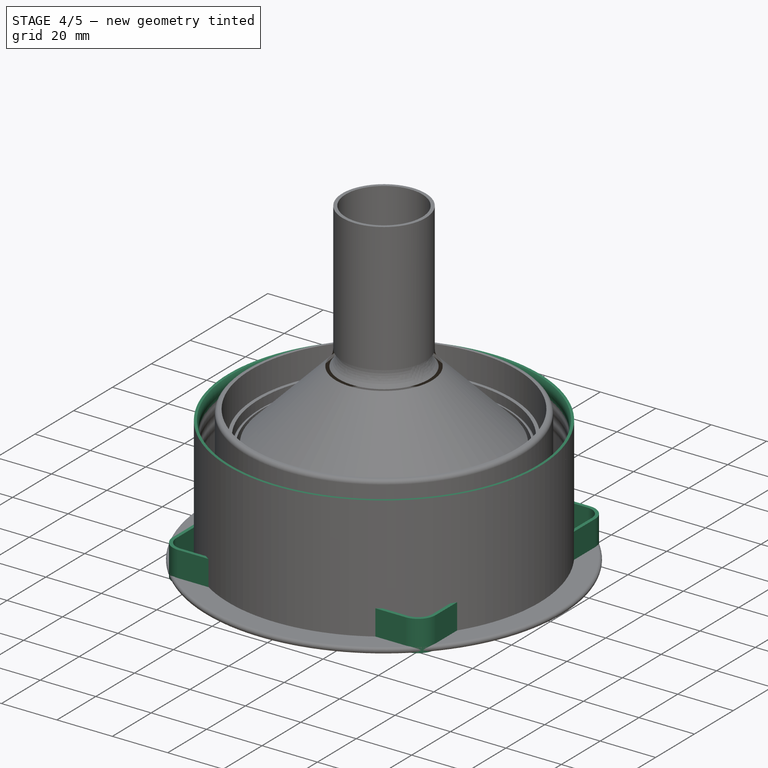
[diagram: stage 4 of 5 — iso view after this stage's code; geometry added in this stage tinted green]
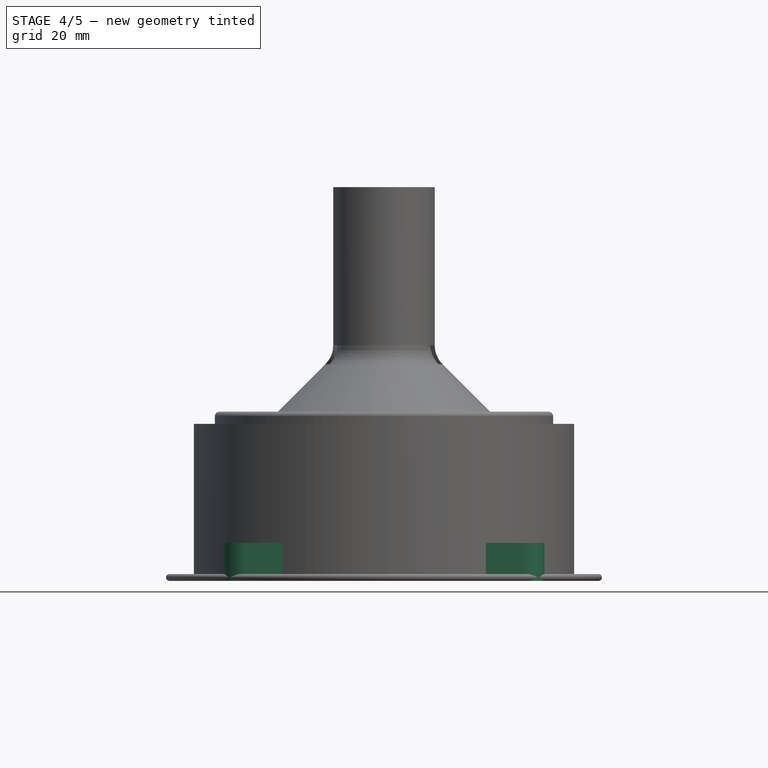
[diagram: stage 4 of 5 — front view after this stage's code; geometry added in this stage tinted green]
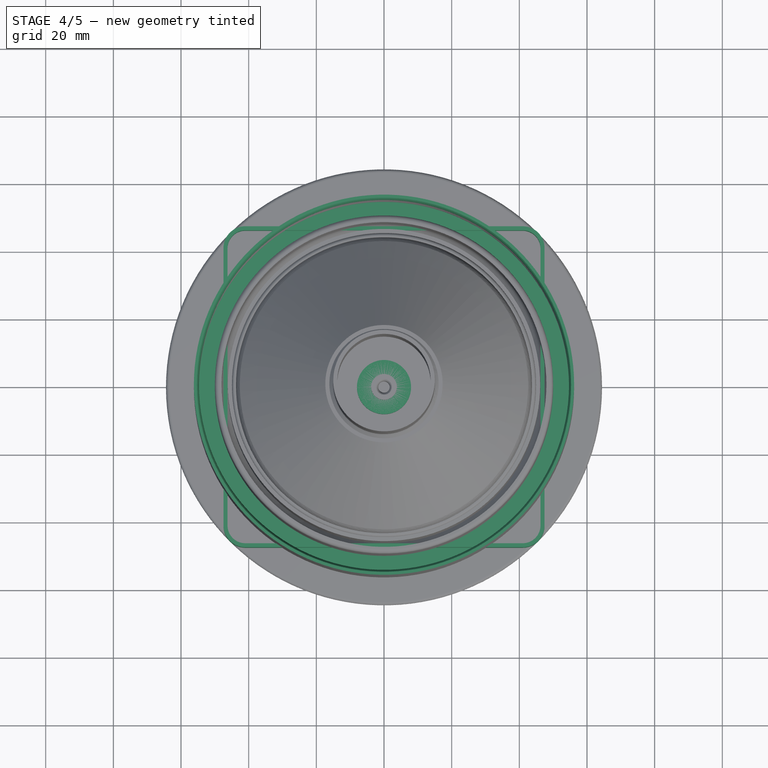
[diagram: stage 4 of 5 — top view after this stage's code; geometry added in this stage tinted green]
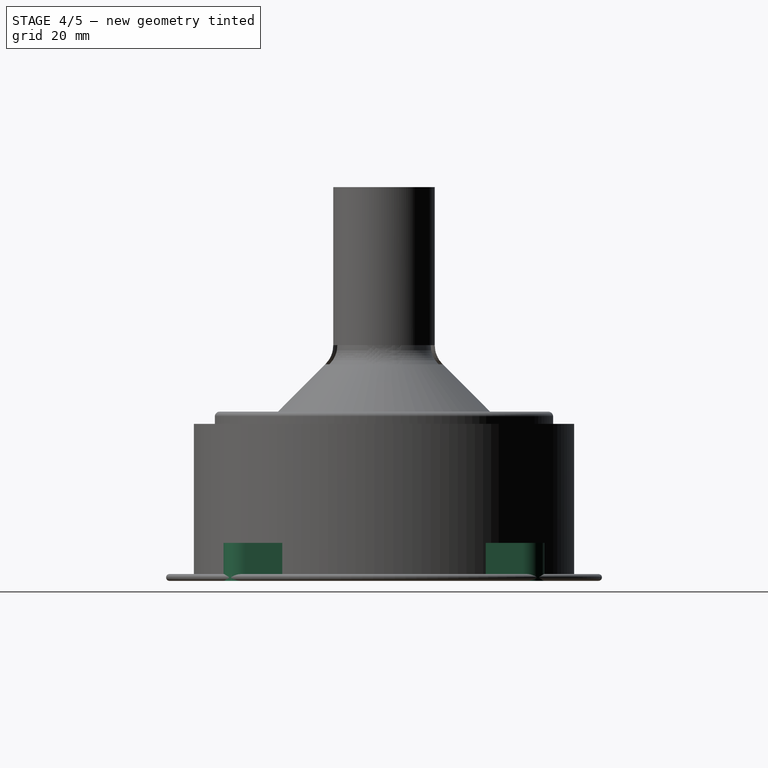
[diagram: stage 4 of 5 — right view after this stage's code; geometry added in this stage tinted green]
FEATURE [PartDesign::Body] Body
  AllowCompound = false
  Group = -> [Sketch007,Revolution,Sketch001,Sketch002,Sketch003,Sketch004,Sketch005,Chamfer001,AdditiveLoft,Fillet001,Fillet]
  Origin = -> Origin
  Tip = -> Fillet
FEATURE [Sketcher::SketchObject] Sketch
  ArcFitTolerance = 0
  AttachmentSupport = -> [XZ_Plane002]
  FullyConstrained = true
  MakeInternals = false
  MapMode = 5
  Placement = pos=(0,0,0) rot=(1,0,0;1.5708rad)
  expr: Constraints[10] = <<Spreadsheet>>.Variance
  expr: Constraints[114] = <<Spreadsheet>>.WallThickness
  expr: Constraints[116] = <<Spreadsheet>>.Height
  expr: Constraints[52] = <<Spreadsheet>>.CentralPipeRadius
  expr: Constraints[56] = <<Spreadsheet>>.InnerRadius
  expr: Constraints[5] = <<Spreadsheet>>.BaseThickness
  sketch-geometry (45):
    g0: LineSegment StartX=-56.2 StartY=0 StartZ=0 EndX=-56.2 EndY=46.4 EndZ=0
    g1: LineSegment [constr] StartX=0 StartY=0 StartZ=0 EndX=0 EndY=6.4 EndZ=0
    g2: LineSegment [constr] StartX=-55 StartY=6.4 StartZ=0 EndX=-56.2 EndY=6.4 EndZ=0
    g3: LineSegment [constr] StartX=-54.7 StartY=46.4 StartZ=0 EndX=-54.7 EndY=6.4 EndZ=0
    g4: ArcOfCircle CenterX=-59.7 CenterY=44.0251 CenterZ=0 NormalX=0 NormalY=0 NormalZ=1 AngleXU=0 Radius=5 StartAngle=6.03762 EndAngle=6.77812
    g5: ArcOfCircle CenterX=-50 CenterY=41.5941 CenterZ=0 NormalX=0 NormalY=0 NormalZ=1 AngleXU=0 Radius=5 StartAngle=2.89603 EndAngle=3.38716
    g6: ArcOfCircle CenterX=-59.7 CenterY=39.163 CenterZ=0 NormalX=0 NormalY=0 NormalZ=1 AngleXU=0 Radius=5 StartAngle=6.03762 EndAngle=6.52875
    g7: ArcOfCircle CenterX=-50 CenterY=36.732 CenterZ=0 NormalX=0 NormalY=0 NormalZ=1 AngleXU=0 Radius=5 StartAngle=2.89603 EndAngle=3.14159
    g8: LineSegment [constr] StartX=-44.95 StartY=0 StartZ=0 EndX=0 EndY=0 EndZ=0
    g9: LineSegment [constr] StartX=-44.95 StartY=6.4 StartZ=0 EndX=-44.95 EndY=0 EndZ=0
    g10: LineSegment [constr] StartX=-55 StartY=36.732 StartZ=0 EndX=-55 EndY=46.4 EndZ=0
    g11: LineSegment [constr] StartX=-55 StartY=6.4 StartZ=0 EndX=-55 EndY=16.1242 EndZ=0
    g12: LineSegment StartX=-55 StartY=16.1242 StartZ=0 EndX=-55 EndY=36.732 EndZ=0
    g13: ArcOfCircle CenterX=-50 CenterY=6.4 CenterZ=0 NormalX=0 NormalY=0 NormalZ=1 AngleXU=0 Radius=5 StartAngle=2.89603 EndAngle=3.14159
    g14: ArcOfCircle CenterX=-59.7 CenterY=8.83105 CenterZ=0 NormalX=0 NormalY=0 NormalZ=1 AngleXU=0 Radius=5 StartAngle=6.03762 EndAngle=6.52875
    g15: LineSegment StartX=-56.2 StartY=46.4 StartZ=0 EndX=-55.3 EndY=46.4 EndZ=0
    g16: LineSegment [constr] StartX=-55.3 StartY=46.4 StartZ=0 EndX=-54.7 EndY=46.4 EndZ=0
    g17: ArcOfCircle CenterX=-50 CenterY=11.2621 CenterZ=0 NormalX=0 NormalY=0 NormalZ=1 AngleXU=0 Radius=5 StartAngle=2.89603 EndAngle=3.38716
    g18: ArcOfCircle CenterX=-59.7 CenterY=13.6931 CenterZ=0 NormalX=0 NormalY=0 NormalZ=1 AngleXU=0 Radius=5 StartAngle=6.03762 EndAngle=6.52875
    g19: ArcOfCircle CenterX=-50 CenterY=16.1242 CenterZ=0 NormalX=0 NormalY=0 NormalZ=1 AngleXU=0 Radius=5 StartAngle=3.14159 EndAngle=3.38716
    g20: LineSegment [constr] StartX=-44.95 StartY=6.4 StartZ=0 EndX=-46.15 EndY=6.4 EndZ=0
    g21: LineSegment StartX=-46.15 StartY=6.4 StartZ=0 EndX=-46.15 EndY=26.4 EndZ=0
    g22: LineSegment [constr] StartX=-46.15 StartY=26.4 StartZ=0 EndX=-54.7 EndY=26.4 EndZ=0
    g23: LineSegment StartX=-56.2 StartY=0 StartZ=0 EndX=-45.25 EndY=0 EndZ=0
    g24: LineSegment [constr] StartX=-45.25 StartY=0 StartZ=0 EndX=-44.95 EndY=0 EndZ=0
    g25: LineSegment [constr] StartX=-44.65 StartY=26.4 StartZ=0 EndX=-44.65 EndY=6.4 EndZ=0
    g26: LineSegment StartX=-46.15 StartY=6.4 StartZ=0 EndX=-54.7 EndY=6.4 EndZ=0
    g27: LineSegment StartX=-54.7 StartY=6.4 StartZ=0 EndX=-55 EndY=6.4 EndZ=0
    g28: LineSegment [constr] StartX=0 StartY=6.4 StartZ=0 EndX=-44.65 EndY=6.4 EndZ=0
    g29: LineSegment [constr] StartX=-44.65 StartY=6.4 StartZ=0 EndX=-44.95 EndY=6.4 EndZ=0
    g30: ArcOfCircle CenterX=-49.65 CenterY=8.61871 CenterZ=0 NormalX=0 NormalY=0 NormalZ=1 AngleXU=0 Radius=5 StartAngle=6.03537 EndAngle=6.52875
    g31: LineSegment [constr] StartX=-44.65 StartY=6.4 StartZ=0 EndX=-44.65 EndY=0 EndZ=0
    g32: ArcOfCircle CenterX=-39.95 CenterY=11.0498 CenterZ=0 NormalX=0 NormalY=0 NormalZ=1 AngleXU=0 Radius=5 StartAngle=2.89603 EndAngle=3.38716
    g33: ArcOfCircle CenterX=-49.65 CenterY=13.4808 CenterZ=0 NormalX=0 NormalY=0 NormalZ=1 AngleXU=0 Radius=5 StartAngle=6.03762 EndAngle=6.52875
    g34: LineSegment [constr] StartX=-44.95 StartY=6.4 StartZ=0 EndX=-44.95 EndY=15.9119 EndZ=0
    g35: ArcOfCircle CenterX=-39.95 CenterY=15.9119 CenterZ=0 NormalX=0 NormalY=0 NormalZ=1 AngleXU=0 Radius=5 StartAngle=3.14159 EndAngle=3.38716
    g36: LineSegment StartX=-44.95 StartY=26.4 StartZ=0 EndX=-46.15 EndY=26.4 EndZ=0
    g37: LineSegment StartX=-44.95 StartY=15.9119 StartZ=0 EndX=-44.95 EndY=21.5379 EndZ=0
    g38: LineSegment [constr] StartX=-44.95 StartY=21.5379 StartZ=0 EndX=-44.95 EndY=26.4 EndZ=0
    g39: ArcOfCircle CenterX=-39.95 CenterY=21.5379 CenterZ=0 NormalX=0 NormalY=0 NormalZ=1 AngleXU=0 Radius=5 StartAngle=2.89603 EndAngle=3.14159
    g40: ArcOfCircle CenterX=-49.65 CenterY=23.969 CenterZ=0 NormalX=0 NormalY=0 NormalZ=1 AngleXU=0 Radius=5 StartAngle=6.03762 EndAngle=6.52875
    g41: ArcOfCircle CenterX=-39.95 CenterY=26.4 CenterZ=0 NormalX=0 NormalY=0 NormalZ=1 AngleXU=0 Radius=5 StartAngle=3.14159 EndAngle=3.38716
    g42: GeomPoint [constr] X=-50.575 Y=0 Z=0
    g43: LineSegment StartX=-45.25 StartY=0 StartZ=0 EndX=-44.95 EndY=6.4 EndZ=0
    g44: ArcOfCircle CenterX=-39.9555 CenterY=6.16588 CenterZ=0 NormalX=0 NormalY=0 NormalZ=1 AngleXU=0 Radius=5 StartAngle=2.89378 EndAngle=3.09475
  constraints (123):
    c: Vertical(g0)
    c: Coincident(g15,g0)
    c: Coincident(g23,g0)
    c: Vertical(g1)
    c: Coincident(g8,g1)
    c: DistanceY(g1,g1) = 6.4
    c: Coincident(g28,g1)
    c: PointOnObject(g2,g0)
    c: Horizontal(g2)
    c: Coincident(g3,g16)
    c: DistanceX(g10,g16) = 0.3
    c: Tangent(g4,g3)
    c: Equal(g5,g4)
    c: Tangent(g4,g5) = 1.5708
    c: Tangent(g5,g6) = 1.5708
    c: Tangent(g6,g7) = 1.5708
    c: Equal(g5,g6)
    c: Equal(g6,g7)
    c: Tangent(g6,g3)
    c: Radius(g4) = 5
    c: Coincident(g29,g20)
    c: Coincident(g24,g8)
    c: Horizontal(g8)
    c: Coincident(g9,g29)
    c: Coincident(g9,g24)
    c: Vertical(g9)
    c: Coincident(g12,g10)
    c: Tangent(g5,g10)
    c: Coincident(g12,g7)
    c: Tangent(g5,g11)
    c: Tangent(g7,g11) = 1.5708
    c: Coincident(g13,g11)
    c: Tangent(g14,g3)
    c: Tangent(g14,g13) = 1.5708
    c: Equal(g14,g13)
    c: Symmetric(g4,g16,g10)
    c: Coincident(g15,g16)
    c: Horizontal(g15)
    c: Horizontal(g16)
    c: Coincident(g15,g4)
    c: Vertical(g3)
    c: Equal(g17,g14)
    c: Tangent(g17,g11)
    c: Coincident(g2,g11)
    c: Coincident(g27,g13)
    c: Tangent(g17,g14) = 1.5708
    c: Equal(g18,g17)
    c: Tangent(g18,g17) = 1.5708
    c: Tangent(g18,g3)
    c: Equal(g18,g19)
    c: Tangent(g19,g18) = 1.5708
    c: Equal(g19,g7)
    c: DistanceX(g8,g8) = 44.95
    c: Vertical(g12)
    c: Tangent(g19,g12) = 1.5708
    c: Coincident(g11,g12)
    c: DistanceX(g27,g1) = 55
    c: Coincident(g20,g26)
    c: Horizontal(g20)
    c: PointOnObject(g13,g20)
    c: PointOnObject(g3,g20)
    c: Equal(g2,g20)
    c: Coincident(g21,g26)
    c: Vertical(g21)
    c: Coincident(g22,g21)
    c: Horizontal(g22)
    c: Symmetric(g3,g3,g22)
    c: Horizontal(g23)
    c: Horizontal(g24)
    c: Coincident(g34,g29)
    c: Vertical(g25)
    c: Coincident(g26,g27)
    c: Horizontal(g27)
    c: Coincident(g3,g26)
    c: Coincident(g28,g29)
    c: Horizontal(g28)
    c: Horizontal(g29)
    c: Coincident(g25,g28)
    c: Equal(g29,g27)
    c: Tangent(g30,g25)
    c: Equal(g30,g13)
    c: Coincident(g31,g25)
    c: Vertical(g31)
    c: Symmetric(g31,g23,g24)
    c: Tangent(g32,g30) = 1.5708
    c: Equal(g32,g30)
    c: Equal(g32,g33)
    c: Tangent(g32,g33) = 1.5708
    c: Tangent(g33,g25)
    c: Coincident(g34,g37)
    c: Vertical(g34)
    c: Tangent(g32,g34)
    c: Tangent(g35,g33) = 1.5708
    c: Equal(g33,g35)
    c: PointOnObject(g25,g22)
    c: Coincident(g36,g38)
    c: Coincident(g36,g21)
    c: Horizontal(g36)
    c: Coincident(g37,g38)
    c: Vertical(g37)
    c: Vertical(g38)
    c: Tangent(g37,g39) = 1.5708
    c: Equal(g35,g39)
    c: Equal(g39,g40)
    c: Tangent(g40,g39) = 1.5708
    c: Tangent(g40,g25)
    c: Coincident(g41,g36)
    c: PointOnObject(g41,g36)
    c: Tangent(g41,g40) = 1.5708
    c: Equal(g40,g41)
    c: Tangent(g35,g37) = 1.5708
    c: Symmetric(g8,g0,g42)
    c: DistanceX(g42,g1) = 50.575  'DrainOffset'
    c: Coincident(g-1,g1)  '__ANCHOR__'
    c: DistanceX(g0,g10) = 1.2
    c: DistanceY(g31,g25) = 26.4  'ExhaustHeight'
    c: DistanceY(g2,g0) = 40
    c: Coincident(g43,g23)
    c: Tangent(g30,g44) = 1.5708
    c: Equal(g44,g30)
    c: Tangent(g44,g43) = 1.5708
    c: Coincident(g43,g9)
    c: Coincident(g24,g23)
FEATURE [PartDesign::Revolution] Revolution002
  Angle = 360
  Angle2 = 60
  Axis = (0,2e-16,1)
  Base = (0,0,0)
  Placement = pos=(0,0,0) rot=(1,0,0;1.5708rad)
  Profile = -> Sketch
  ReferenceAxis = -> Sketch [V_Axis]
  Refine = true
  Suppressed = false
  Type = 0
FEATURE [PartDesign::Body] Body002  label="HoleyCap"
  AllowCompound = false
  Group = -> [Sketch,Revolution002,Sketch009,Groove,Chamfer002]
  Origin = -> Origin002
  Tip = -> Chamfer002
FEATURE [Sketcher::SketchObject] Sketch010
  ArcFitTolerance = 0
  AttachmentSupport = -> [XY_Plane003]
  FullyConstrained = true
  MakeInternals = false
  MapMode = 5
  sketch-geometry (1):
    g0: Circle CenterX=0 CenterY=0 CenterZ=0 NormalX=0 NormalY=0 NormalZ=1 AngleXU=0 Radius=8
  constraints (2):
    c: Coincident(g0,g-1)
    c: Radius(g0) = 8
FEATURE [PartDesign::Pad] Pad
  Direction = (0,0,1)
  Length = 6.4
  Length2 = 10
  Profile = -> Sketch010
  ReferenceAxis = -> Sketch010 [N_Axis]
  Suppressed = false
  Type = 0
  expr: Length = <<Spreadsheet>>.BaseThickness
FEATURE [Sketcher::SketchObject] Sketch011
  ArcFitTolerance = 0
  AttachmentSupport = -> [XZ_Plane003]
  FullyConstrained = true
  MakeInternals = false
  MapMode = 5
  Placement = pos=(0,0,0) rot=(1,0,0;1.5708rad)
  expr: Constraints[15] = <<Spreadsheet>>.Variance
  expr: Constraints[19] = <<Spreadsheet>>.BaseThickness
  sketch-geometry (15):
    g0: LineSegment StartX=-2.3 StartY=6.4 StartZ=0 EndX=0 EndY=6.4 EndZ=0
    g1: LineSegment StartX=0 StartY=0 StartZ=0 EndX=-2.3 EndY=0 EndZ=0
    g2: LineSegment [constr] StartX=-1.7 StartY=6.4 StartZ=0 EndX=-1.7 EndY=0 EndZ=0
    g3: ArcOfCircle CenterX=-4.5 CenterY=4.66795 CenterZ=0 NormalX=0 NormalY=0 NormalZ=1 AngleXU=0 Radius=2.8 StartAngle=5.95438 EndAngle=6.95013
    g4: ArcOfCircle CenterX=0.8 CenterY=2.85964 CenterZ=0 NormalX=0 NormalY=0 NormalZ=1 AngleXU=0 Radius=2.8 StartAngle=2.81279 EndAngle=3.14159
    g5: LineSegment [constr] StartX=-2 StartY=2.85964 StartZ=0 EndX=0.8 EndY=2.85964 EndZ=0
    g6: LineSegment [constr] StartX=-2.3 StartY=6.4 StartZ=0 EndX=-2.3 EndY=0 EndZ=0
    g7: LineSegment [constr] StartX=-2 StartY=2.85964 StartZ=0 EndX=-2.3 EndY=2.85964 EndZ=0
    g8: LineSegment [constr] StartX=-2 StartY=3.54036 StartZ=0 EndX=0.8 EndY=3.54036 EndZ=0
    g9: ArcOfCircle CenterX=0.8 CenterY=3.54036 CenterZ=0 NormalX=0 NormalY=0 NormalZ=1 AngleXU=0 Radius=2.8 StartAngle=3.14159 EndAngle=3.4704
    g10: ArcOfCircle CenterX=-4.5 CenterY=1.73205 CenterZ=0 NormalX=0 NormalY=0 NormalZ=1 AngleXU=0 Radius=2.8 StartAngle=5.61624 EndAngle=6.61199
    g11: LineSegment [constr] StartX=-2 StartY=0 StartZ=0 EndX=-2 EndY=3.54036 EndZ=0
    g12: LineSegment StartX=-2 StartY=3.54036 StartZ=0 EndX=-2 EndY=2.85964 EndZ=0
    g13: LineSegment [constr] StartX=-2 StartY=2.85964 StartZ=0 EndX=-2 EndY=6.4 EndZ=0
    g14: LineSegment StartX=0 StartY=0 StartZ=0 EndX=0 EndY=6.4 EndZ=0
  constraints (43):
    c: Horizontal(g0)
    c: Horizontal(g1)
    c: PointOnObject(g2,g1)
    c: Vertical(g2)
    c: Tangent(g3,g2)
    c: Coincident(g5,g4)
    c: Horizontal(g5)
    c: Equal(g4,g3)
    c: Radius(g3) = 2.8
    c: Tangent(g3,g4) = 1.5708
    c: Coincident(g0,g3)
    c: PointOnObject(g2,g0)
    c: Coincident(g6,g0)
    c: Coincident(g6,g1)
    c: Vertical(g6)
    c: DistanceX(g0,g13) = 0.3
    c: Coincident(g7,g4)
    c: Horizontal(g7)
    c: PointOnObject(g7,g6)
    c: DistanceY(g1,g0) = 6.4
    c: Horizontal(g8)
    c: Coincident(g9,g8)
    c: Equal(g9,g4)
    c: Equal(g9,g10)
    c: Tangent(g10,g9) = 1.5708
    c: Tangent(g10,g2)
    c: Coincident(g10,g1)
    c: Coincident(g11,g12)
    c: Vertical(g11)
    c: PointOnObject(g4,g11)
    c: Coincident(g12,g13)
    c: Vertical(g13)
    c: Coincident(g12,g4)
    c: Coincident(g11,g9)
    c: Symmetric(g2,g0,g13)
    c: PointOnObject(g11,g1)
    c: DistanceX(g11,g-1) = 2
    c: Coincident(g1,g-1)
    c: Coincident(g14,g1)
    c: Vertical(g14)
    c: Coincident(g0,g14)
    c: Coincident(g8,g9)
    c: Coincident(g4,g5)
FEATURE [PartDesign::Groove] Groove001
  Angle = 360
  Angle2 = 60
  Axis = (0,2e-16,1)
  Base = (0,0,0)
  BaseFeature = -> Pad
  Profile = -> Sketch011
  ReferenceAxis = -> Sketch011 [V_Axis]
  Reversed = true
  Suppressed = false
  Type = 0
FEATURE [PartDesign::Body] Body003  label="DrainTest"
  AllowCompound = false
  Group = -> [Sketch010,Pad,Sketch011,Groove001]
  Origin = -> Origin003
  Tip = -> Groove001
FEATURE [Sketcher::SketchObject] Sketch012  label="Seal_Template"
  ArcFitTolerance = 0
  AttachmentSupport = -> [XY_Plane004]
  FullyConstrained = true
  MakeInternals = false
  MapMode = 5
  expr: Constraints[62] = <<Spreadsheet>>.WallThickness
  sketch-geometry (29):
    g0: Circle CenterX=0 CenterY=0 CenterZ=0 NormalX=0 NormalY=0 NormalZ=1 AngleXU=0 Radius=43.75
    g1: LineSegment [constr] StartX=-47.45 StartY=-47.45 StartZ=0 EndX=47.45 EndY=47.45 EndZ=0
    g2: LineSegment [constr] StartX=-47.45 StartY=47.45 StartZ=0 EndX=47.45 EndY=-47.45 EndZ=0
    g3: Circle CenterX=-41 CenterY=41 CenterZ=0 NormalX=0 NormalY=0 NormalZ=1 AngleXU=0 Radius=2.4
    g4: Circle CenterX=41 CenterY=41 CenterZ=0 NormalX=0 NormalY=0 NormalZ=1 AngleXU=0 Radius=2.4
    g5: Circle CenterX=41 CenterY=-41 CenterZ=0 NormalX=0 NormalY=0 NormalZ=1 AngleXU=0 Radius=2.4
    g6: Circle CenterX=-41 CenterY=-41 CenterZ=0 NormalX=0 NormalY=0 NormalZ=1 AngleXU=0 Radius=2.4
    g7: LineSegment [constr] StartX=-41 StartY=41 StartZ=0 EndX=41 EndY=41 EndZ=0
    g8: LineSegment [constr] StartX=41 StartY=41 StartZ=0 EndX=41 EndY=-41 EndZ=0
    g9: LineSegment [constr] StartX=41 StartY=-41 StartZ=0 EndX=-41 EndY=-41 EndZ=0
    g10: LineSegment [constr] StartX=-41 StartY=-41 StartZ=0 EndX=-41 EndY=41 EndZ=0
    g11: ArcOfCircle CenterX=-41 CenterY=41 CenterZ=0 NormalX=0 NormalY=0 NormalZ=1 AngleXU=0 Radius=6.45 StartAngle=1.5708 EndAngle=3.14159
    g12: LineSegment StartX=-41 StartY=47.45 StartZ=0 EndX=41 EndY=47.45 EndZ=0
    g13: ArcOfCircle CenterX=41 CenterY=41 CenterZ=0 NormalX=0 NormalY=0 NormalZ=1 AngleXU=0 Radius=6.45 StartAngle=1e-16 EndAngle=1.5708
    g14: LineSegment StartX=47.45 StartY=41 StartZ=0 EndX=47.45 EndY=-41 EndZ=0
    g15: ArcOfCircle CenterX=41 CenterY=-41 CenterZ=0 NormalX=0 NormalY=0 NormalZ=1 AngleXU=0 Radius=6.45 StartAngle=4.71239 EndAngle=6.28319
    g16: LineSegment StartX=41 StartY=-47.45 StartZ=0 EndX=-41 EndY=-47.45 EndZ=0
    g17: ArcOfCircle CenterX=-41 CenterY=-41 CenterZ=0 NormalX=0 NormalY=0 NormalZ=1 AngleXU=0 Radius=6.45 StartAngle=3.14159 EndAngle=4.71239
    g18: LineSegment StartX=-47.45 StartY=-41 StartZ=0 EndX=-47.45 EndY=41 EndZ=0
    g19: ArcOfCircle CenterX=-41 CenterY=41 CenterZ=0 NormalX=0 NormalY=0 NormalZ=1 AngleXU=0 Radius=5.25 StartAngle=1.5708 EndAngle=3.14159
    g20: LineSegment StartX=-41 StartY=46.25 StartZ=0 EndX=41 EndY=46.25 EndZ=0
    g21: ArcOfCircle CenterX=41 CenterY=41 CenterZ=0 NormalX=0 NormalY=0 NormalZ=1 AngleXU=0 Radius=5.25 StartAngle=-9e-16 EndAngle=1.5708
    g22: LineSegment StartX=46.25 StartY=41 StartZ=0 EndX=46.25 EndY=-41 EndZ=0
    g23: ArcOfCircle CenterX=41 CenterY=-41 CenterZ=0 NormalX=0 NormalY=0 NormalZ=1 AngleXU=0 Radius=5.25 StartAngle=4.71239 EndAngle=6.28319
    g24: LineSegment StartX=41 StartY=-46.25 StartZ=0 EndX=-41 EndY=-46.25 EndZ=0
    g25: ArcOfCircle CenterX=-41 CenterY=-41 CenterZ=0 NormalX=0 NormalY=0 NormalZ=1 AngleXU=0 Radius=5.25 StartAngle=3.14159 EndAngle=4.71239
    g26: LineSegment StartX=-46.25 StartY=-41 StartZ=0 EndX=-46.25 EndY=41 EndZ=0
    g27: GeomPoint [constr] X=-39.3029 Y=39.3029 Z=0
    g28: GeomPoint [constr] X=39.3029 Y=-39.3029 Z=0
  constraints (70):
    c: PointOnObject(g0,g2)
    c: PointOnObject(g0,g1)
    c: PointOnObject(g3,g2)
    c: PointOnObject(g4,g1)
    c: PointOnObject(g5,g2)
    c: PointOnObject(g6,g1)
    c: Equal(g3,g4)
    c: Equal(g4,g5)
    c: Equal(g5,g6)
    c: DistanceX(g3,g4) = 82
    c: Coincident(g7,g8)
    c: Coincident(g8,g9)
    c: Coincident(g9,g10)
    c: Coincident(g10,g7)
    c: Horizontal(g7)
    c: Horizontal(g9)
    c: Vertical(g8)
    c: Coincident(g7,g3)
    c: Coincident(g8,g5)
    c: Coincident(g7,g4)
    c: Coincident(g6,g9)
    c: Radius(g3) = 2.4
    c: Tangent(g11,g12) = 1.5708
    c: Tangent(g12,g13) = 1.5708
    c: Tangent(g13,g14) = 1.5708
    c: Tangent(g14,g15) = 1.5708
    c: Tangent(g15,g16) = 1.5708
    c: Tangent(g16,g17) = 1.5708
    c: Tangent(g17,g18) = 1.5708
    c: Tangent(g18,g11) = 1.5708
    c: Horizontal(g12)
    c: Horizontal(g16)
    c: Vertical(g14)
    c: Vertical(g18)
    c: Equal(g11,g13)
    c: Equal(g13,g15)
    c: Equal(g15,g17)
    c: PointOnObject(g2,g12)
    c: PointOnObject(g2,g18)
    c: PointOnObject(g1,g14)
    c: PointOnObject(g1,g12)
    c: PointOnObject(g1,g16)
    c: PointOnObject(g2,g14)
    c: Coincident(g11,g3)
    c: Tangent(g19,g20) = 1.5708
    c: Tangent(g20,g21) = 1.5708
    c: Tangent(g21,g22) = 1.5708
    c: Tangent(g22,g23) = 1.5708
    c: Tangent(g23,g24) = 1.5708
    c: Tangent(g24,g25) = 1.5708
    c: Tangent(g25,g26) = 1.5708
    c: Tangent(g26,g19) = 1.5708
    c: Horizontal(g20)
    c: Horizontal(g24)
    c: Vertical(g22)
    c: Vertical(g26)
    c: Equal(g23,g25)
    c: DistanceX(g19,g21) = 92.5
    c: Coincident(g19,g3)
    c: Coincident(g21,g4)
    c: Coincident(g5,g15)
    c: Coincident(g5,g23)
    c: DistanceY(g19,g11) = 1.2
    c: Coincident(g-1,g0)  '__ANCHOR__'
    c: Radius(g0) = 43.75
    c: PointOnObject(g27,g2)
    c: PointOnObject(g28,g2)
    c: PointOnObject(g28,g5)
    c: PointOnObject(g27,g3)
    c: Distance(g27,g28) = 111.166
FEATURE [Sketcher::SketchObject] Sketch013  label="Seal_Base"
  ArcFitTolerance = 0
  AttachmentSupport = -> [XY_Plane004]
  ExternalGeometry = -> [Sketch012]
  FullyConstrained = true
  MakeInternals = false
  MapMode = 5
  sketch-geometry (13):
    g0: ArcOfCircle CenterX=-41 CenterY=41 CenterZ=0 NormalX=0 NormalY=0 NormalZ=1 AngleXU=0 Radius=6.45 StartAngle=1.5708 EndAngle=3.14159
    g1: ArcOfCircle CenterX=41 CenterY=41 CenterZ=0 NormalX=0 NormalY=0 NormalZ=1 AngleXU=0 Radius=6.45 StartAngle=6e-16 EndAngle=1.5708
    g2: ArcOfCircle CenterX=41 CenterY=-41 CenterZ=0 NormalX=0 NormalY=0 NormalZ=1 AngleXU=0 Radius=6.45 StartAngle=4.71239 EndAngle=6.28319
    g3: ArcOfCircle CenterX=-41 CenterY=-41 CenterZ=0 NormalX=0 NormalY=0 NormalZ=1 AngleXU=0 Radius=6.45 StartAngle=3.14159 EndAngle=4.71239
    g4: LineSegment StartX=-41 StartY=47.45 StartZ=0 EndX=41 EndY=47.45 EndZ=0
    g5: LineSegment StartX=47.45 StartY=-41 StartZ=0 EndX=47.45 EndY=41 EndZ=0
    g6: LineSegment StartX=41 StartY=-47.45 StartZ=0 EndX=-41 EndY=-47.45 EndZ=0
    g7: LineSegment StartX=-47.45 StartY=41 StartZ=0 EndX=-47.45 EndY=-41 EndZ=0
    g8: Circle CenterX=-41 CenterY=41 CenterZ=0 NormalX=0 NormalY=0 NormalZ=1 AngleXU=0 Radius=2.4
    g9: Circle CenterX=41 CenterY=41 CenterZ=0 NormalX=0 NormalY=0 NormalZ=1 AngleXU=0 Radius=2.4
    g10: Circle CenterX=41 CenterY=-41 CenterZ=0 NormalX=0 NormalY=0 NormalZ=1 AngleXU=0 Radius=2.4
    g11: Circle CenterX=-41 CenterY=-41 CenterZ=0 NormalX=0 NormalY=0 NormalZ=1 AngleXU=0 Radius=2.4
    g12: Circle CenterX=0 CenterY=0 CenterZ=0 NormalX=0 NormalY=0 NormalZ=1 AngleXU=0 Radius=43.75
  constraints (30):
    c: Coincident(g0,g-3)
    c: Coincident(g0,g-3)
    c: Coincident(g1,g-6)
    c: Coincident(g1,g-6)
    c: Coincident(g2,g-7)
    c: Coincident(g2,g-7)
    c: Coincident(g3,g-9)
    c: Coincident(g3,g-9)
    c: Equal(g-3,g0)
    c: Equal(g-6,g1)
    c: Equal(g-7,g2)
    c: Equal(g-9,g3)
    c: Coincident(g4,g0)
    c: Coincident(g4,g1)
    c: Coincident(g5,g2)
    c: Coincident(g5,g1)
    c: Coincident(g6,g2)
    c: Coincident(g6,g3)
    c: Coincident(g7,g0)
    c: Coincident(g7,g3)
    c: Coincident(g8,g0)
    c: Coincident(g9,g1)
    c: Coincident(g10,g2)
    c: Coincident(g11,g3)
    c: Coincident(g-11,g12)
    c: Equal(g-11,g12)
    c: Equal(g-4,g8)
    c: Equal(g-5,g9)
    c: Equal(g-8,g10)
    c: Equal(g-10,g11)
FEATURE [PartDesign::Pad] Pad001  label="Seal_Base_"
  Direction = (0,0,1)
  Length = 1.2
  Length2 = 10
  Profile = -> Sketch013
  ReferenceAxis = -> Sketch013 [N_Axis]
  Suppressed = false
  Type = 0
  expr: Length = <<Spreadsheet>>.WallThickness
FEATURE [Sketcher::SketchObject] Sketch014  label="Seal_Side"
  ArcFitTolerance = 0
  AttachmentOffset = pos=(0,0,1.2) rot=(0,0,1;0rad)
  AttachmentSupport = -> [XY_Plane004]
  ExternalGeometry = -> [Sketch012]
  FullyConstrained = true
  MakeInternals = false
  MapMode = 5
  Placement = pos=(0,0,1.2) rot=(0,0,1;0rad)
  expr: .AttachmentOffset.Base.z = <<Seal_Base>>.AttachmentOffset.Base.z + <<Seal_Base_>>.Length
  sketch-geometry (16):
    g0: ArcOfCircle CenterX=-41 CenterY=41 CenterZ=0 NormalX=0 NormalY=0 NormalZ=1 AngleXU=0 Radius=5.25 StartAngle=1.5708 EndAngle=3.14159
    g1: ArcOfCircle CenterX=-41 CenterY=41 CenterZ=0 NormalX=0 NormalY=0 NormalZ=1 AngleXU=0 Radius=6.45 StartAngle=1.5708 EndAngle=3.14159
    g2: ArcOfCircle CenterX=41 CenterY=41 CenterZ=0 NormalX=0 NormalY=0 NormalZ=1 AngleXU=0 Radius=5.25 StartAngle=2.33e-14 EndAngle=1.5708
    g3: ArcOfCircle CenterX=41 CenterY=41 CenterZ=0 NormalX=0 NormalY=0 NormalZ=1 AngleXU=0 Radius=6.45 StartAngle=2e-16 EndAngle=1.5708
    g4: ArcOfCircle CenterX=41 CenterY=-41 CenterZ=0 NormalX=0 NormalY=0 NormalZ=1 AngleXU=0 Radius=5.25 StartAngle=4.71239 EndAngle=6.28319
    g5: ArcOfCircle CenterX=41 CenterY=-41 CenterZ=0 NormalX=0 NormalY=0 NormalZ=1 AngleXU=0 Radius=6.45 StartAngle=4.71239 EndAngle=6.28319
    g6: ArcOfCircle CenterX=-41 CenterY=-41 CenterZ=0 NormalX=0 NormalY=0 NormalZ=1 AngleXU=0 Radius=5.25 StartAngle=3.14159 EndAngle=4.71239
    g7: ArcOfCircle CenterX=-41 CenterY=-41 CenterZ=0 NormalX=0 NormalY=0 NormalZ=1 AngleXU=0 Radius=6.45 StartAngle=3.14159 EndAngle=4.71239
    g8: LineSegment StartX=-41 StartY=47.45 StartZ=0 EndX=41 EndY=47.45 EndZ=0
    g9: LineSegment StartX=47.45 StartY=41 StartZ=0 EndX=47.45 EndY=-41 EndZ=0
    g10: LineSegment StartX=-47.45 StartY=-41 StartZ=0 EndX=-47.45 EndY=41 EndZ=0
    g11: LineSegment StartX=-41 StartY=46.25 StartZ=0 EndX=41 EndY=46.25 EndZ=0
    g12: LineSegment StartX=46.25 StartY=41 StartZ=0 EndX=46.25 EndY=-41 EndZ=0
    g13: LineSegment StartX=41 StartY=-46.25 StartZ=0 EndX=-41 EndY=-46.25 EndZ=0
    g14: LineSegment StartX=-46.25 StartY=-41 StartZ=0 EndX=-46.25 EndY=41 EndZ=0
    g15: LineSegment StartX=-41 StartY=-47.45 StartZ=0 EndX=41 EndY=-47.45 EndZ=0
  constraints (40):
    c: Coincident(g0,g-4)
    c: Coincident(g0,g-4)
    c: Coincident(g1,g-3)
    c: Coincident(g1,g-3)
    c: Coincident(g2,g-5)
    c: Coincident(g2,g-5)
    c: Coincident(g3,g-6)
    c: Coincident(g3,g-6)
    c: Coincident(g4,g-8)
    c: Coincident(g4,g-8)
    c: Coincident(g5,g-7)
    c: Coincident(g5,g-7)
    c: Coincident(g6,g-10)
    c: Coincident(g6,g-10)
    c: Coincident(g7,g-9)
    c: Coincident(g7,g-9)
    c: Equal(g-9,g7)
    c: Equal(g-10,g6)
    c: Equal(g-3,g1)
    c: Equal(g-4,g0)
    c: Equal(g-6,g3)
    c: Equal(g-5,g2)
    c: Equal(g-7,g5)
    c: Equal(g-8,g4)
    c: Coincident(g8,g1)
    c: Coincident(g8,g3)
    c: Coincident(g9,g3)
    c: Coincident(g9,g5)
    c: Coincident(g10,g7)
    c: Coincident(g10,g1)
    c: Coincident(g11,g0)
    c: Coincident(g11,g2)
    c: Coincident(g12,g2)
    c: Coincident(g12,g4)
    c: Coincident(g13,g4)
    c: Coincident(g14,g6)
    c: Coincident(g14,g0)
    c: Coincident(g6,g13)
    c: Coincident(g15,g7)
    c: Coincident(g15,g5)
FEATURE [PartDesign::Pad] Pad002  label="Seal_Side_"
  BaseFeature = -> Pad001
  Direction = (0,0,1)
  Length = 10
  Length2 = 10
  Profile = -> Sketch014
  ReferenceAxis = -> Sketch014 [N_Axis]
  Refine = true
  Suppressed = false
  Type = 0
FEATURE [PartDesign::Chamfer] Chamfer
  Angle = 45
  Base = -> Fillet005 [Edge24,Edge26,Edge25,Edge23]
  BaseFeature = -> Fillet005
  ChamferType = 0
  FlipDirection = false
  Size = 1.4
  Size2 = 1
  SupportTransform = false
  Suppressed = false
  UseAllEdges = false
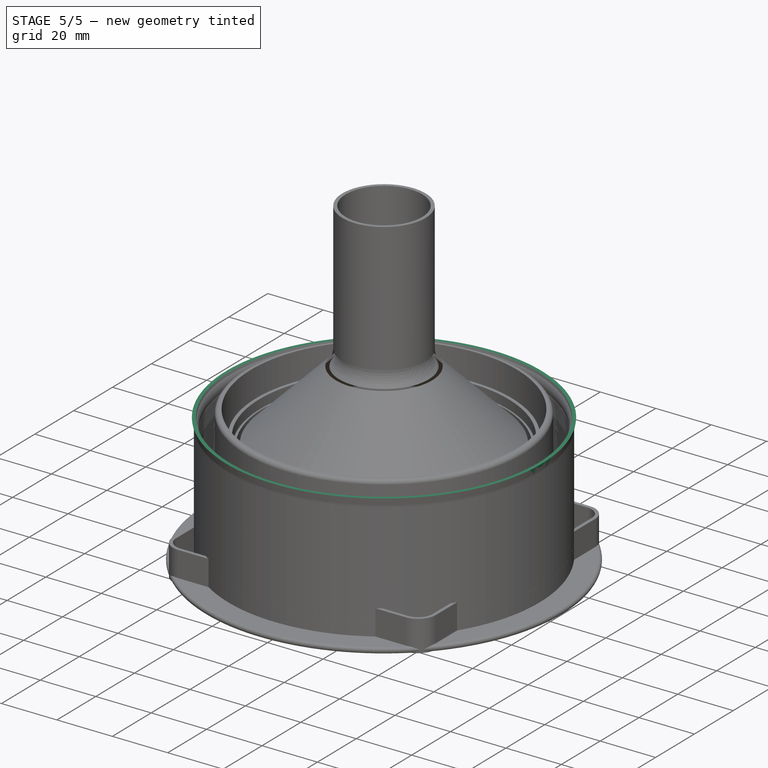
[diagram: stage 5 of 5 — iso view after this stage's code; geometry added in this stage tinted green]
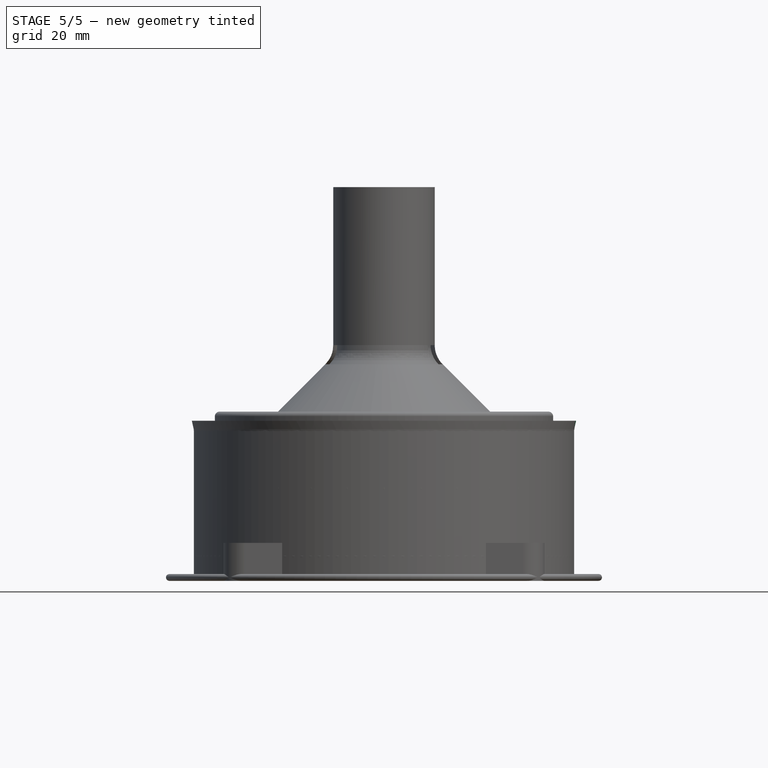
[diagram: stage 5 of 5 — front view after this stage's code; geometry added in this stage tinted green]
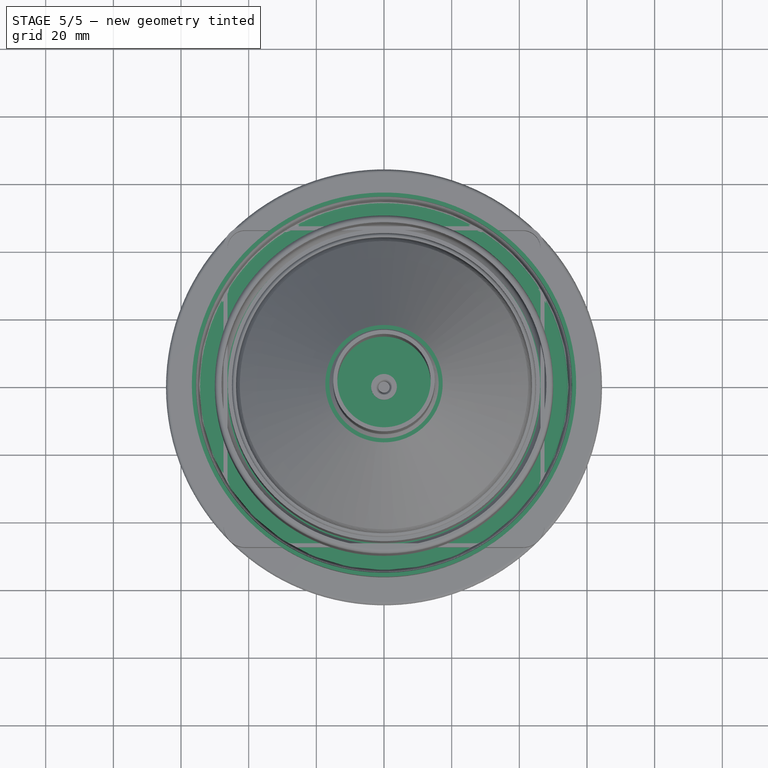
[diagram: stage 5 of 5 — top view after this stage's code; geometry added in this stage tinted green]
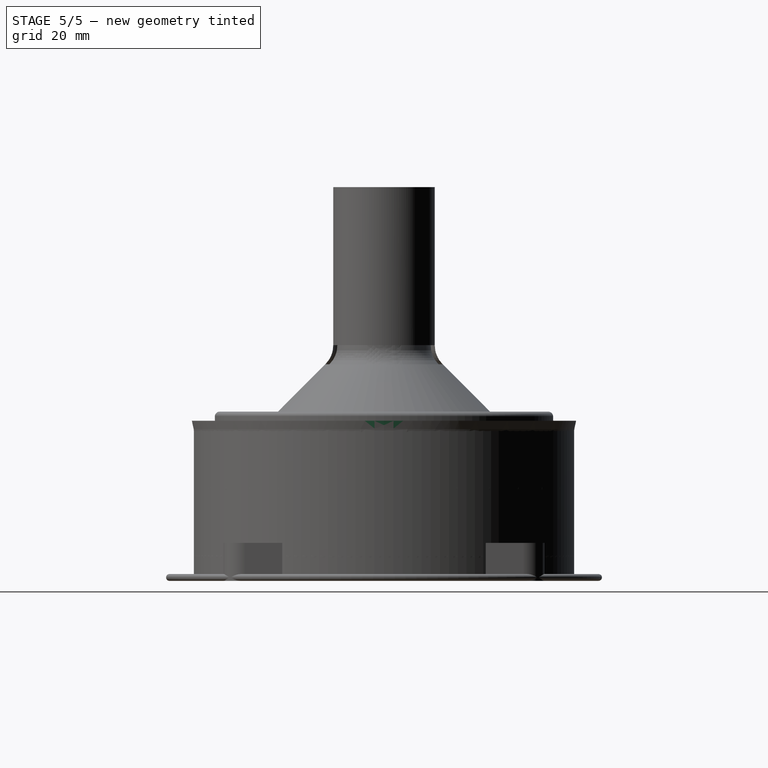
[diagram: stage 5 of 5 — right view after this stage's code; geometry added in this stage tinted green]
FEATURE [Spreadsheet::Sheet] Spreadsheet
  cells = B2='InnerRadius; C2(InnerRadius)==55 mm; B3='Variance; C3(Variance)==0.3 mm; B4='WallThickness; C4(WallThickness)==1.2 mm; B5='Height; C5(Height)==40 mm; B6='BaseThickness; C6(BaseThickness)==6.4 mm; B7='FanHoleRadius; C7(FanHoleRadius)==43.75 mm; B8='CentralPipeRadius; C8(CentralPipeRadius)==FanHoleRadius + WallThickness; B9='InletTubeOuterRadius; C9(InletTubeOuterRadius)==50 mm; B10='FanBaseThickness; C10(FanBaseThickness)==2 mm; B11='InletTubeThickness; C11(InletTubeThickness)==2 mm; B12='InletTubeLength; C12(InletTubeLength)==40 mm
FEATURE [Sketcher::SketchObject] Sketch001
  ArcFitTolerance = 0
  AttachmentOffset = pos=(0,0,7.3) rot=(0,0,1;0rad)
  AttachmentSupport = -> [XY_Plane]
  FullyConstrained = true
  MakeInternals = false
  MapMode = 5
  Placement = pos=(0,0,7.3) rot=(0,0,1;0rad)
  expr: .AttachmentOffset.Base.z = Sketch007.Constraints.Height
  expr: Constraints[1] = <<Spreadsheet>>.InnerRadius + <<Spreadsheet>>.WallThickness
  expr: Constraints[6] = <<Spreadsheet>>.WallThickness
  sketch-geometry (3):
    g0: Circle CenterX=0 CenterY=0 CenterZ=0 NormalX=0 NormalY=0 NormalZ=1 AngleXU=0 Radius=56.2
    g1: Circle CenterX=0 CenterY=0 CenterZ=0 NormalX=0 NormalY=0 NormalZ=1 AngleXU=0 Radius=55
    g2: LineSegment [constr] StartX=-55 StartY=0 StartZ=0 EndX=-56.2 EndY=0 EndZ=0
  constraints (8):
    c: Coincident(g0,g-1)
    c: Radius(g0) = 56.2
    c: Coincident(g1,g0)
    c: PointOnObject(g2,g1)
    c: PointOnObject(g2,g0)
    c: Horizontal(g2)
    c: Distance(g2) = 1.2
    c: PointOnObject(g1,g2)
FEATURE [Sketcher::SketchObject] Sketch002
  ArcFitTolerance = 0
  AttachmentOffset = pos=(0,0,17.3) rot=(0,0,1;0rad)
  AttachmentSupport = -> [XY_Plane]
  FullyConstrained = true
  MakeInternals = false
  MapMode = 5
  Placement = pos=(0,0,17.3) rot=(0,0,1;0rad)
  expr: .AttachmentOffset.Base.z = <<Sketch001>>.AttachmentOffset.Base.z + <<Spreadsheet>>.Height / 4
  expr: Constraints[1] = <<Spreadsheet>>.InnerRadius + <<Spreadsheet>>.WallThickness - <<Spreadsheet>>.Variance
  expr: Constraints[6] = <<Spreadsheet>>.WallThickness
  sketch-geometry (3):
    g0: Circle CenterX=0 CenterY=0 CenterZ=0 NormalX=0 NormalY=0 NormalZ=1 AngleXU=0 Radius=55.9
    g1: Circle CenterX=0 CenterY=0 CenterZ=0 NormalX=0 NormalY=0 NormalZ=1 AngleXU=0 Radius=54.7
    g2: LineSegment [constr] StartX=-54.7 StartY=0 StartZ=0 EndX=-55.9 EndY=0 EndZ=0
  constraints (8):
    c: Coincident(g0,g-1)
    c: Radius(g0) = 55.9
    c: Coincident(g1,g0)
    c: PointOnObject(g2,g1)
    c: PointOnObject(g2,g0)
    c: Horizontal(g2)
    c: Distance(g2) = 1.2
    c: PointOnObject(g1,g2)
FEATURE [Sketcher::SketchObject] Sketch003
  ArcFitTolerance = 0
  AttachmentOffset = pos=(0,0,27.3) rot=(0,0,1;0rad)
  AttachmentSupport = -> [XY_Plane]
  FullyConstrained = true
  MakeInternals = false
  MapMode = 5
  Placement = pos=(0,0,27.3) rot=(0,0,1;0rad)
  expr: .AttachmentOffset.Base.z = <<Sketch001>>.AttachmentOffset.Base.z + <<Spreadsheet>>.Height / 4 * 2
  expr: Constraints[1] = <<Spreadsheet>>.InnerRadius + <<Spreadsheet>>.WallThickness
  expr: Constraints[6] = <<Spreadsheet>>.WallThickness
  sketch-geometry (3):
    g0: Circle CenterX=0 CenterY=0 CenterZ=0 NormalX=0 NormalY=0 NormalZ=1 AngleXU=0 Radius=56.2
    g1: Circle CenterX=0 CenterY=0 CenterZ=0 NormalX=0 NormalY=0 NormalZ=1 AngleXU=0 Radius=55
    g2: LineSegment [constr] StartX=-55 StartY=0 StartZ=0 EndX=-56.2 EndY=0 EndZ=0
  constraints (8):
    c: Coincident(g0,g-1)
    c: Radius(g0) = 56.2
    c: Coincident(g1,g0)
    c: PointOnObject(g2,g1)
    c: PointOnObject(g2,g0)
    c: Horizontal(g2)
    c: Distance(g2) = 1.2
    c: PointOnObject(g1,g2)
FEATURE [Sketcher::SketchObject] Sketch004
  ArcFitTolerance = 0
  AttachmentOffset = pos=(0,0,37.3) rot=(0,0,1;0rad)
  AttachmentSupport = -> [XY_Plane]
  FullyConstrained = true
  MakeInternals = false
  MapMode = 5
  Placement = pos=(0,0,37.3) rot=(0,0,1;0rad)
  expr: .AttachmentOffset.Base.z = <<Sketch001>>.AttachmentOffset.Base.z + <<Spreadsheet>>.Height / 4 * 3
  expr: Constraints[1] = <<Spreadsheet>>.InnerRadius + <<Spreadsheet>>.WallThickness - <<Spreadsheet>>.Variance
  expr: Constraints[6] = <<Spreadsheet>>.WallThickness
  sketch-geometry (3):
    g0: Circle CenterX=0 CenterY=0 CenterZ=0 NormalX=0 NormalY=0 NormalZ=1 AngleXU=0 Radius=55.9
    g1: Circle CenterX=0 CenterY=0 CenterZ=0 NormalX=0 NormalY=0 NormalZ=1 AngleXU=0 Radius=54.7
    g2: LineSegment [constr] StartX=-54.7 StartY=0 StartZ=0 EndX=-55.9 EndY=0 EndZ=0
  constraints (8):
    c: Coincident(g0,g-1)
    c: Radius(g0) = 55.9
    c: Coincident(g1,g0)
    c: PointOnObject(g2,g1)
    c: PointOnObject(g2,g0)
    c: Horizontal(g2)
    c: Distance(g2) = 1.2
    c: PointOnObject(g1,g2)
FEATURE [Sketcher::SketchObject] Sketch005
  ArcFitTolerance = 0
  AttachmentOffset = pos=(0,0,47.3) rot=(0,0,1;0rad)
  AttachmentSupport = -> [XY_Plane]
  FullyConstrained = true
  MakeInternals = false
  MapMode = 5
  Placement = pos=(0,0,47.3) rot=(0,0,1;0rad)
  expr: .AttachmentOffset.Base.z = <<Sketch001>>.AttachmentOffset.Base.z + <<Spreadsheet>>.Height
  expr: Constraints[1] = <<Spreadsheet>>.InnerRadius + <<Spreadsheet>>.WallThickness + 0.6 mm
  expr: Constraints[6] = <<Spreadsheet>>.WallThickness
  sketch-geometry (3):
    g0: Circle CenterX=0 CenterY=0 CenterZ=0 NormalX=0 NormalY=0 NormalZ=1 AngleXU=0 Radius=56.8
    g1: Circle CenterX=0 CenterY=0 CenterZ=0 NormalX=0 NormalY=0 NormalZ=1 AngleXU=0 Radius=55.6
    g2: LineSegment [constr] StartX=-55.6 StartY=0 StartZ=0 EndX=-56.8 EndY=0 EndZ=0
  constraints (8):
    c: Coincident(g0,g-1)
    c: Radius(g0) = 56.8
    c: Coincident(g1,g0)
    c: PointOnObject(g2,g1)
    c: PointOnObject(g2,g0)
    c: Horizontal(g2)
    c: Distance(g2) = 1.2
    c: PointOnObject(g1,g2)
FEATURE [Sketcher::SketchObject] Sketch007
  ArcFitTolerance = 0
  AttachmentSupport = -> [YZ_Plane]
  FullyConstrained = true
  MakeInternals = false
  MapMode = 5
  Placement = pos=(0,0,0) rot=(0.57735,0.57735,0.57735;2.0944rad)
  expr: Constraints[7] = <<Spreadsheet>>.InnerRadius + <<Spreadsheet>>.WallThickness
  sketch-geometry (13):
    g0: LineSegment StartX=-56.2 StartY=7.3 StartZ=0 EndX=-2 EndY=7.3 EndZ=0
    g1: LineSegment StartX=-2 StartY=0 StartZ=0 EndX=-56.2 EndY=0 EndZ=0
    g2: LineSegment StartX=-56.2 StartY=0 StartZ=0 EndX=-56.2 EndY=7.3 EndZ=0
    g3: LineSegment [constr] StartX=-1.7 StartY=0 StartZ=0 EndX=-1.7 EndY=7.3 EndZ=0
    g4: LineSegment StartX=-2 StartY=0.326203 StartZ=0 EndX=-2 EndY=0 EndZ=0
    g5: LineSegment [constr] StartX=-2 StartY=2.43333 StartZ=0 EndX=-2 EndY=0.326203 EndZ=0
    g6: ArcOfCircle CenterX=-3.7 CenterY=1.37977 CenterZ=0 NormalX=0 NormalY=0 NormalZ=1 AngleXU=0 Radius=2 StartAngle=5.72837 EndAngle=6.838
    g7: LineSegment StartX=-2 StartY=2.75954 StartZ=0 EndX=-2 EndY=2.43333 EndZ=0
    g8: LineSegment [constr] StartX=-2 StartY=4.86667 StartZ=0 EndX=-2 EndY=2.75954 EndZ=0
    g9: ArcOfCircle CenterX=-3.7 CenterY=3.8131 CenterZ=0 NormalX=0 NormalY=0 NormalZ=1 AngleXU=0 Radius=2 StartAngle=5.72837 EndAngle=6.838
    g10: LineSegment StartX=-2 StartY=5.19287 StartZ=0 EndX=-2 EndY=4.86667 EndZ=0
    g11: LineSegment [constr] StartX=-2 StartY=7.3 StartZ=0 EndX=-2 EndY=5.19287 EndZ=0
    g12: ArcOfCircle CenterX=-3.7 CenterY=6.24643 CenterZ=0 NormalX=0 NormalY=0 NormalZ=1 AngleXU=0 Radius=2 StartAngle=5.72837 EndAngle=6.838
  constraints (41):
    c: Coincident(g4,g1)
    c: Coincident(g1,g2)
    c: Coincident(g2,g0)
    c: Horizontal(g0)
    c: Horizontal(g1)
    c: Vertical(g2)
    c: PointOnObject(g4,g-1)
    c: DistanceX(g1,g-1) = 56.2
    c: DistanceX(g4,g-1) = 2
    c: DistanceY(g2,g2) = 7.3  'Height'
    c: Vertical(g3)
    c: PointOnObject(g3,g0)
    c: PointOnObject(g3,g1)
    c: DistanceX(g4,g3) = 0.3
    c: Coincident(g5,g4)
    c: Vertical(g4)
    c: Coincident(g7,g5)
    c: Vertical(g5)
    c: Coincident(g6,g7)
    c: Coincident(g6,g4)
    c: Tangent(g6,g3)
    c: Radius(g6) = 2
    c: Coincident(g8,g7)
    c: Vertical(g7)
    c: Coincident(g10,g8)
    c: Vertical(g8)
    c: Coincident(g9,g10)
    c: Coincident(g9,g7)
    c: Tangent(g9,g3)
    c: Equal(g7,g4)
    c: Equal(g9,g6)
    c: Coincident(g11,g10)
    c: Vertical(g10)
    c: Vertical(g11)
    c: Equal(g10,g7)
    c: Coincident(g12,g10)
    c: Tangent(g12,g3)
    c: Equal(g9,g12)
    c: DistanceY(g4,g4) = 0.326203
    c: Coincident(g0,g11)
    c: Coincident(g0,g12)
FEATURE [PartDesign::Revolution] Revolution
  Angle = 360
  Angle2 = 60
  Axis = (0,0,1)
  Base = (0,0,0)
  Placement = pos=(0,0,0) rot=(0.57735,0.57735,0.57735;2.0944rad)
  Profile = -> Sketch007
  ReferenceAxis = -> Sketch007 [V_Axis]
  Suppressed = false
  Type = 0
FEATURE [PartDesign::Chamfer] Chamfer001
  Angle = 45
  Base = -> Revolution [Edge2]
  BaseFeature = -> Revolution
  ChamferType = 0
  FlipDirection = false
  Placement = pos=(0,0,0) rot=(0.57735,0.57735,0.57735;2.0944rad)
  Size = 0.3
  Size2 = 1
  SupportTransform = false
  Suppressed = false
  UseAllEdges = false
FEATURE [PartDesign::AdditiveLoft] AdditiveLoft
  BaseFeature = -> Chamfer001
  Closed = false
  Placement = pos=(0,0,0) rot=(0.57735,0.57735,0.57735;2.0944rad)
  Profile = -> Sketch001
  Refine = true
  Ruled = false
  Sections = -> [Sketch002,Sketch003,Sketch004,Sketch005]
  Suppressed = false
FEATURE [PartDesign::Fillet] Fillet001
  Base = -> AdditiveLoft [Edge23]
  BaseFeature = -> AdditiveLoft
  Placement = pos=(0,0,0) rot=(0.57735,0.57735,0.57735;2.0944rad)
  Radius = 1
  SupportTransform = false
  Suppressed = false
  UseAllEdges = false
FEATURE [PartDesign::Fillet] Fillet
  Base = -> Fillet001 [Edge14]
  BaseFeature = -> Fillet001
  Placement = pos=(0,0,0) rot=(0.57735,0.57735,0.57735;2.0944rad)
  Radius = 7.29
  SupportTransform = false
  Suppressed = false
  UseAllEdges = false
  expr: Radius = <<Sketch007>>.Constraints.Height - 0.01 mm
FEATURE [Sketcher::SketchObject] Sketch009
  ArcFitTolerance = 0
  AttachmentOffset = pos=(50.575,0,0) rot=(0,0,1;0rad)
  AttachmentSupport = -> [XZ_Plane002]
  FullyConstrained = true
  MakeInternals = false
  MapMode = 5
  Placement = pos=(50.575,0,0) rot=(1,0,0;1.5708rad)
  expr: .AttachmentOffset.Base.x = Sketch.Constraints.DrainOffset
  expr: Constraints[15] = <<Spreadsheet>>.Variance
  expr: Constraints[19] = <<Spreadsheet>>.BaseThickness
  sketch-geometry (15):
    g0: LineSegment StartX=-2.3 StartY=6.4 StartZ=0 EndX=0 EndY=6.4 EndZ=0
    g1: LineSegment StartX=0 StartY=0 StartZ=0 EndX=-2.3 EndY=0 EndZ=0
    g2: LineSegment [constr] StartX=-1.7 StartY=6.4 StartZ=0 EndX=-1.7 EndY=0 EndZ=0
    g3: ArcOfCircle CenterX=-4.5 CenterY=4.66795 CenterZ=0 NormalX=0 NormalY=0 NormalZ=1 AngleXU=0 Radius=2.8 StartAngle=5.95438 EndAngle=6.95013
    g4: ArcOfCircle CenterX=0.8 CenterY=2.85964 CenterZ=0 NormalX=0 NormalY=0 NormalZ=1 AngleXU=0 Radius=2.8 StartAngle=2.81279 EndAngle=3.14159
    g5: LineSegment [constr] StartX=-2 StartY=2.85964 StartZ=0 EndX=0.8 EndY=2.85964 EndZ=0
    g6: LineSegment [constr] StartX=-2.3 StartY=6.4 StartZ=0 EndX=-2.3 EndY=0 EndZ=0
    g7: LineSegment [constr] StartX=-2 StartY=2.85964 StartZ=0 EndX=-2.3 EndY=2.85964 EndZ=0
    g8: LineSegment [constr] StartX=-2 StartY=3.54036 StartZ=0 EndX=0.8 EndY=3.54036 EndZ=0
    g9: ArcOfCircle CenterX=0.8 CenterY=3.54036 CenterZ=0 NormalX=0 NormalY=0 NormalZ=1 AngleXU=0 Radius=2.8 StartAngle=3.14159 EndAngle=3.4704
    g10: ArcOfCircle CenterX=-4.5 CenterY=1.73205 CenterZ=0 NormalX=0 NormalY=0 NormalZ=1 AngleXU=0 Radius=2.8 StartAngle=5.61624 EndAngle=6.61199
    g11: LineSegment [constr] StartX=-2 StartY=0 StartZ=0 EndX=-2 EndY=3.54036 EndZ=0
    g12: LineSegment StartX=-2 StartY=3.54036 StartZ=0 EndX=-2 EndY=2.85964 EndZ=0
    g13: LineSegment [constr] StartX=-2 StartY=2.85964 StartZ=0 EndX=-2 EndY=6.4 EndZ=0
    g14: LineSegment StartX=0 StartY=0 StartZ=0 EndX=0 EndY=6.4 EndZ=0
  constraints (43):
    c: Horizontal(g0)
    c: Horizontal(g1)
    c: PointOnObject(g2,g1)
    c: Vertical(g2)
    c: Tangent(g3,g2)
    c: Coincident(g5,g4)
    c: Horizontal(g5)
    c: Equal(g4,g3)
    c: Radius(g3) = 2.8
    c: Tangent(g3,g4) = 1.5708
    c: Coincident(g0,g3)
    c: PointOnObject(g2,g0)
    c: Coincident(g6,g0)
    c: Coincident(g6,g1)
    c: Vertical(g6)
    c: DistanceX(g0,g13) = 0.3
    c: Coincident(g7,g4)
    c: Horizontal(g7)
    c: PointOnObject(g7,g6)
    c: DistanceY(g1,g0) = 6.4
    c: Horizontal(g8)
    c: Coincident(g9,g8)
    c: Equal(g9,g4)
    c: Equal(g9,g10)
    c: Tangent(g10,g9) = 1.5708
    c: Tangent(g10,g2)
    c: Coincident(g10,g1)
    c: Coincident(g11,g12)
    c: Vertical(g11)
    c: PointOnObject(g4,g11)
    c: Coincident(g12,g13)
    c: Vertical(g13)
    c: Coincident(g12,g4)
    c: Coincident(g11,g9)
    c: Symmetric(g2,g0,g13)
    c: PointOnObject(g11,g1)
    c: DistanceX(g11,g-1) = 2
    c: Coincident(g1,g-1)
    c: Coincident(g14,g1)
    c: Vertical(g14)
    c: Coincident(g0,g14)
    c: Coincident(g8,g9)
    c: Coincident(g4,g5)
FEATURE [PartDesign::Groove] Groove
  Angle = 360
  Angle2 = 60
  Axis = (0,2e-16,1)
  Base = (50.575,0,0)
  BaseFeature = -> Revolution002
  Placement = pos=(0,0,0) rot=(1,0,0;1.5708rad)
  Profile = -> Sketch009
  ReferenceAxis = -> Sketch009 [V_Axis]
  Reversed = true
  Suppressed = false
  Type = 0
FEATURE [PartDesign::Chamfer] Chamfer002
  Angle = 45
  Base = -> Groove [Edge1]
  BaseFeature = -> Groove
  ChamferType = 0
  FlipDirection = false
  Placement = pos=(0,0,0) rot=(1,0,0;1.5708rad)
  Size = 2
  Size2 = 1
  SupportTransform = false
  Suppressed = false
  UseAllEdges = false
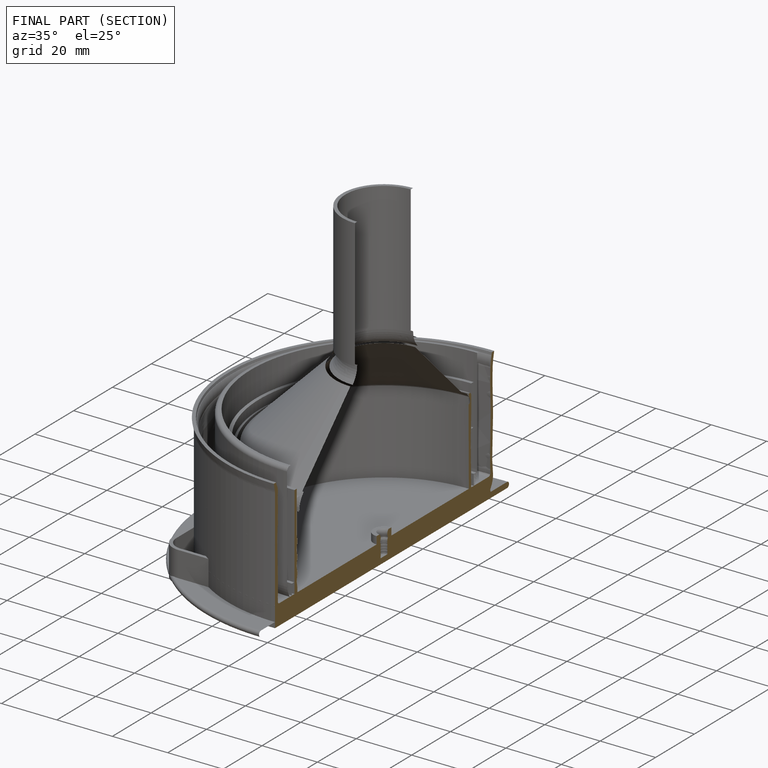
[diagram: finished part — half-section view (interior)]
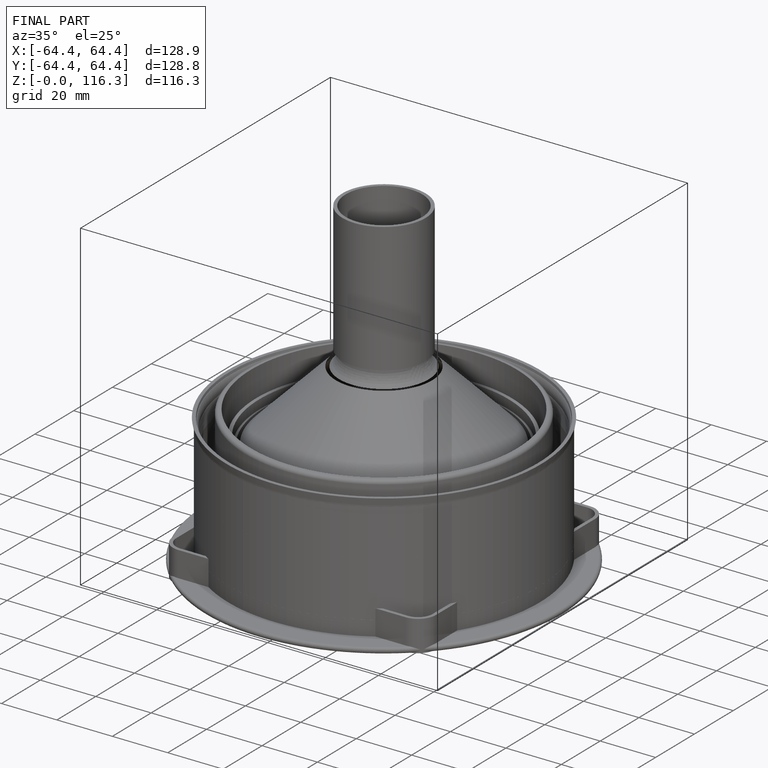
[diagram: finished part — iso view with bounding-box wireframe]
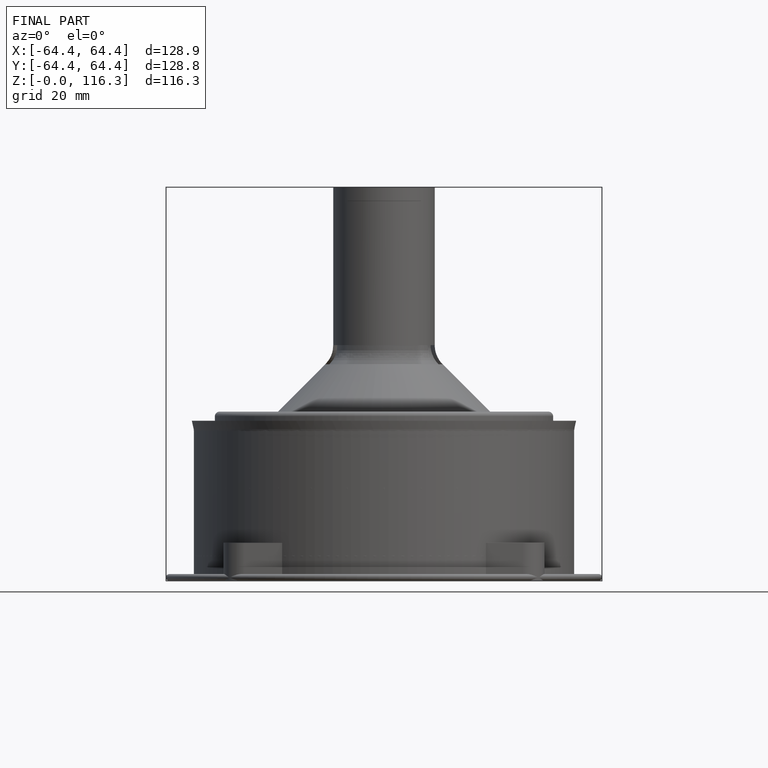
[diagram: finished part — front view with bounding-box wireframe]
